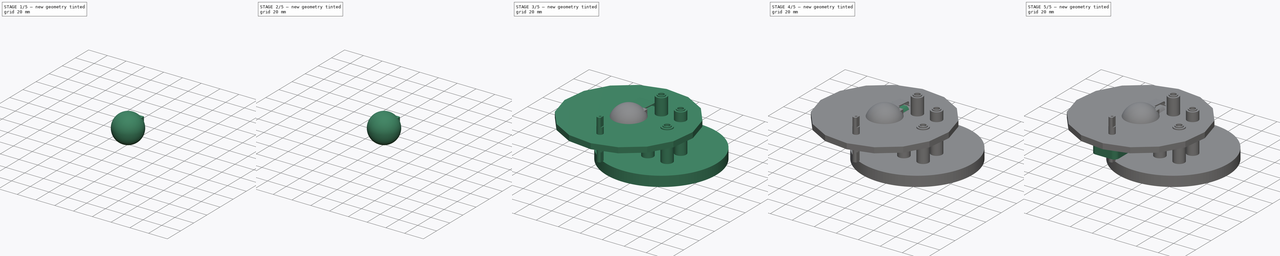
[diagram: build sequence overview — one tinted view per stage of 5, left to right]
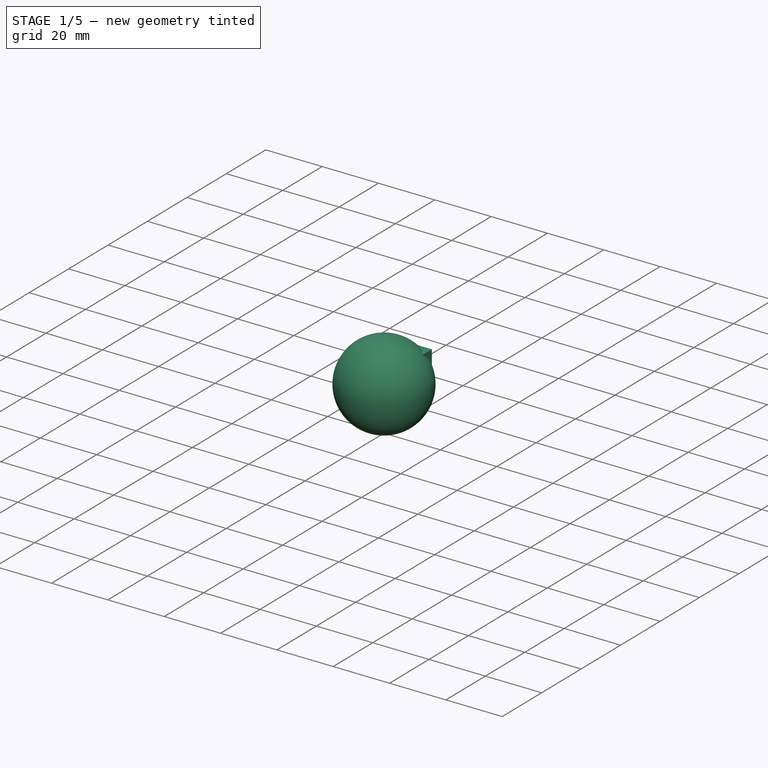
[diagram: stage 1 of 5 — iso view after this stage's code; geometry added in this stage tinted green]
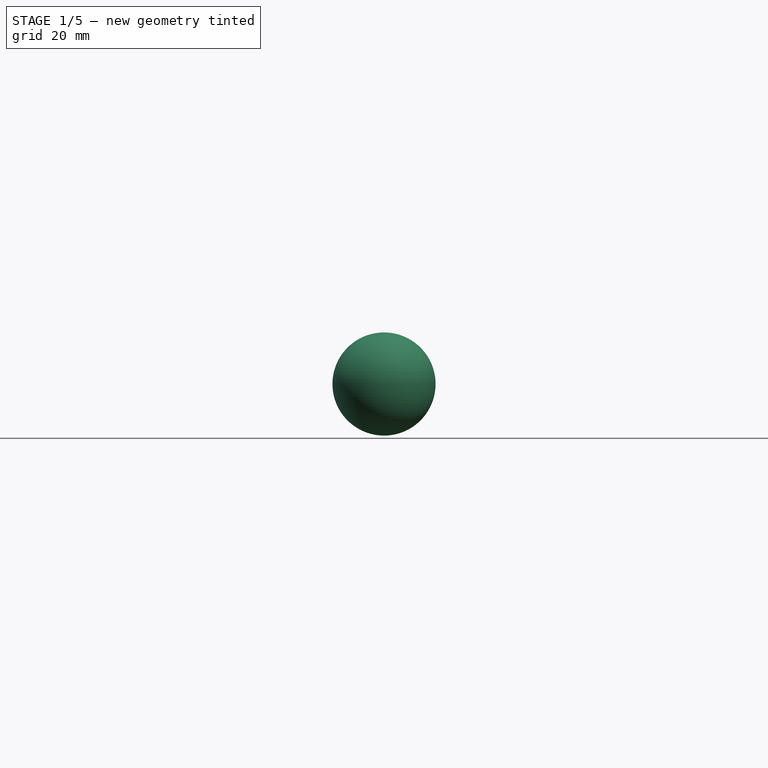
[diagram: stage 1 of 5 — front view after this stage's code; geometry added in this stage tinted green]
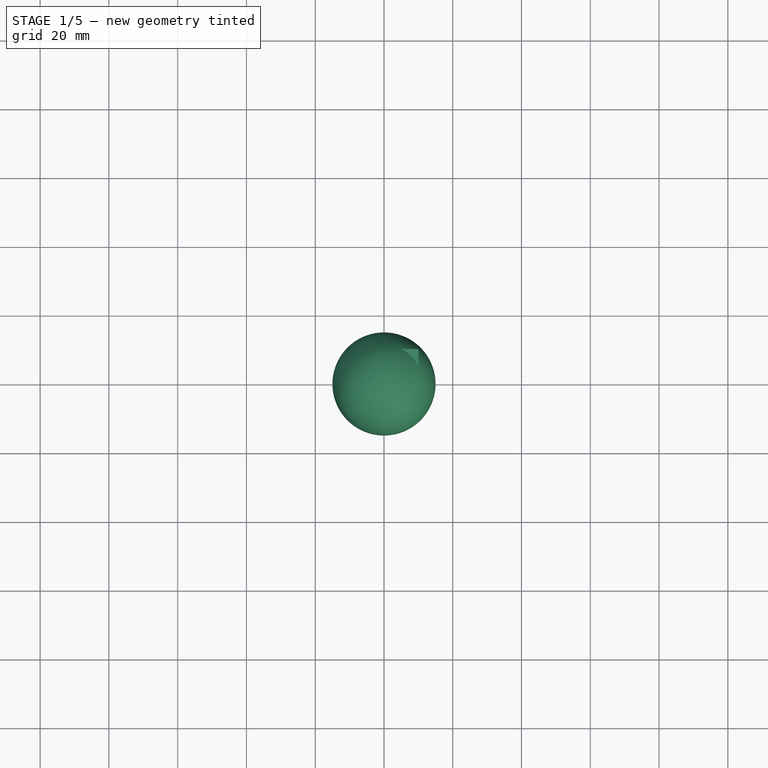
[diagram: stage 1 of 5 — top view after this stage's code; geometry added in this stage tinted green]
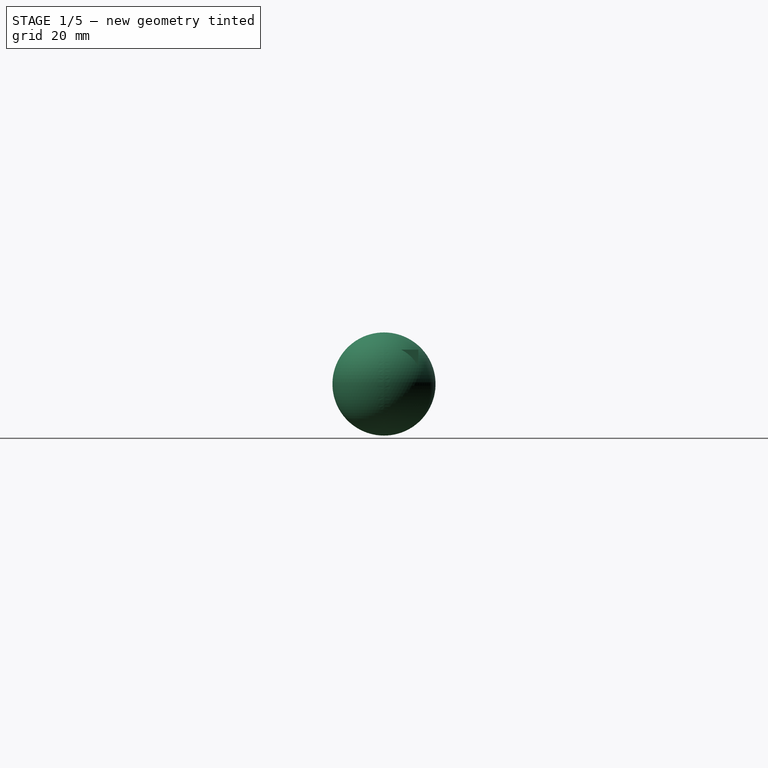
[diagram: stage 1 of 5 — right view after this stage's code; geometry added in this stage tinted green]
FCSTD DOCUMENT  (FreeCAD 0.19R24276 (Git))
Label: turntable
License: All rights reserved
LicenseURL: http://en.wikipedia.org/wiki/All_rights_reserved
objects: Sketcher::SketchObject×55, PartDesign::Pad×38, PartDesign::Body×37, PartDesign::Chamfer×24, PartDesign::Pocket×23, PartDesign::AdditiveBox×18, App::Part×14, PartDesign::ShapeBinder×10, PartDesign::Fillet×9, PartDesign::Revolution×1, PartDesign::Groove×1, PartDesign::Plane×1, PartDesign::AdditiveCylinder×1, PartDesign::AdditiveSphere×1
note: 335 computed .brp shape members not serialized (recipe doc carries the construction recipe); baked Part::Feature solids carry a one-line shape summary decoded from their .brp

FEATURE [PartDesign::Body] Body011
  Group = -> [Box008,Chamfer012]
  Origin = -> Origin015
  Placement = pos=(-5,-5,5) rot=(0,0,1;0rad)
  Tip = -> Chamfer012
FEATURE [PartDesign::Body] Body012
  Group = -> [Box007,Chamfer010]
  Origin = -> Origin017
  Placement = pos=(-5,-5,15) rot=(0,0,1;0rad)
  Tip = -> Chamfer010
FEATURE [App::Part] Part007  label="Part004"
  Group = -> [Body010,Body011,Body012]
  Origin = -> Origin016
  Placement = pos=(-13,-10,56.5) rot=(0,1,0;-3.14159rad)
FEATURE [PartDesign::AdditiveBox] Box010
  AttacherType = Attacher::AttachEngine3D
  Height = 10
  Length = 10
  Refine = true
  Width = 10
FEATURE [PartDesign::Body] Body014
  Group = -> [Box010,Chamfer014]
  Origin = -> Origin019
  Placement = pos=(-5,-5,5) rot=(0,0,1;0rad)
  Tip = -> Chamfer014
FEATURE [PartDesign::AdditiveBox] Box011
  AttacherType = Attacher::AttachEngine3D
  Height = 10
  Length = 10
  Refine = true
  Width = 10
FEATURE [PartDesign::Chamfer] Chamfer013
  Angle = 45
  Base = -> Box011 [Edge2,Edge10,Edge6,Edge12,Edge4,Edge9,Edge11,Edge8]
  BaseFeature = -> Box011
  ChamferType = 0
  FlipDirection = false
  Refine = true
  Size = 0.5
  Size2 = 1
  SupportTransform = false
FEATURE [PartDesign::Body] Body015
  Group = -> [Box011,Chamfer013]
  Origin = -> Origin020
  Placement = pos=(-5,-5,15) rot=(0,0,1;0rad)
  Tip = -> Chamfer013
FEATURE [PartDesign::AdditiveBox] Box012
  AttacherType = Attacher::AttachEngine3D
  Height = 10
  Length = 10
  Refine = true
  Width = 10
FEATURE [PartDesign::Chamfer] Chamfer015
  Angle = 45
  Base = -> Box012 [Edge2,Edge10,Edge6,Edge12,Edge4,Edge9,Edge11,Edge8]
  BaseFeature = -> Box012
  ChamferType = 0
  FlipDirection = false
  Refine = true
  Size = 0.5
  Size2 = 1
  SupportTransform = false
FEATURE [PartDesign::Body] Body013
  Group = -> [Box012,Chamfer015]
  Origin = -> Origin018
  Placement = pos=(-5,-5,-5) rot=(0,0,1;0rad)
  Tip = -> Chamfer015
FEATURE [App::Part] Part008
  Group = -> [Body013,Body014,Body015]
  Origin = -> Origin021
  Placement = pos=(24.566,8.8947,68) rot=(0.129984,0.98733,-0.091016;1.93182rad)
FEATURE [PartDesign::AdditiveBox] Box013
  AttacherType = Attacher::AttachEngine3D
  Height = 10
  Length = 10
  Refine = true
  Width = 10
FEATURE [PartDesign::AdditiveBox] Box014
  AttacherType = Attacher::AttachEngine3D
  Height = 10
  Length = 10
  Refine = true
  Width = 10
FEATURE [PartDesign::Chamfer] Chamfer017
  Angle = 45
  Base = -> Box013 [Edge2,Edge10,Edge6,Edge12,Edge4,Edge9,Edge11,Edge8]
  BaseFeature = -> Box013
  ChamferType = 0
  FlipDirection = false
  Refine = true
  Size = 0.5
  Size2 = 1
  SupportTransform = false
FEATURE [PartDesign::Body] Body016
  Group = -> [Box013,Chamfer017]
  Origin = -> Origin023
  Placement = pos=(-5,-5,-5) rot=(0,0,1;0rad)
  Tip = -> Chamfer017
FEATURE [PartDesign::Chamfer] Chamfer018
  Angle = 45
  Base = -> Box014 [Edge2,Edge10,Edge6,Edge12,Edge4,Edge9,Edge11,Edge8]
  BaseFeature = -> Box014
  ChamferType = 0
  FlipDirection = false
  Refine = true
  Size = 0.5
  Size2 = 1
  SupportTransform = false
FEATURE [PartDesign::Body] Body018
  Group = -> [Box014,Chamfer018]
  Origin = -> Origin024
  Placement = pos=(-5,-5,15) rot=(0,0,1;0rad)
  Tip = -> Chamfer018
FEATURE [PartDesign::AdditiveBox] Box015
  AttacherType = Attacher::AttachEngine3D
  Height = 10
  Length = 10
  Refine = true
  Width = 10
FEATURE [PartDesign::Chamfer] Chamfer016
  Angle = 45
  Base = -> Box015 [Edge2,Edge10,Edge6,Edge12,Edge4,Edge9,Edge11,Edge8]
  BaseFeature = -> Box015
  ChamferType = 0
  FlipDirection = false
  Refine = true
  Size = 0.5
  Size2 = 1
  SupportTransform = false
FEATURE [PartDesign::Body] Body017
  Group = -> [Box015,Chamfer016]
  Origin = -> Origin025
  Placement = pos=(-5,-5,5) rot=(0,0,1;0rad)
  Tip = -> Chamfer016
FEATURE [App::Part] Part009
  Group = -> [Body016,Body017,Body018]
  Origin = -> Origin022
  Placement = pos=(13,10,72) rot=(0,1,0;-1.39626rad)
FEATURE [PartDesign::AdditiveBox] Box016
  AttacherType = Attacher::AttachEngine3D
  Height = 10
  Length = 10
  Refine = true
  Width = 10
FEATURE [PartDesign::Chamfer] Chamfer019
  Angle = 45
  Base = -> Box016 [Edge2,Edge10,Edge6,Edge12,Edge4,Edge9,Edge11,Edge8]
  BaseFeature = -> Box016
  ChamferType = 0
  FlipDirection = false
  Refine = true
  Size = 0.5
  Size2 = 1
  SupportTransform = false
FEATURE [PartDesign::Body] Body031  label="Body020"
  Group = -> [Box016,Chamfer019]
  Origin = -> Origin066
  Placement = pos=(0,-5,10) rot=(0,0,1;0rad)
  Tip = -> Chamfer019
FEATURE [PartDesign::AdditiveBox] Box017
  AttacherType = Attacher::AttachEngine3D
  Height = 10
  Length = 10
  Refine = true
  Width = 10
FEATURE [PartDesign::Chamfer] Chamfer020
  Angle = 45
  Base = -> Box017 [Edge2,Edge10,Edge6,Edge12,Edge4,Edge9,Edge11,Edge8]
  BaseFeature = -> Box017
  ChamferType = 0
  FlipDirection = false
  Refine = true
  Size = 0.5
  Size2 = 1
  SupportTransform = false
FEATURE [PartDesign::Body] Body019
  Group = -> [Box017,Chamfer020]
  Origin = -> Origin065
  Placement = pos=(0,-5,0) rot=(0,0,1;0rad)
  Tip = -> Chamfer020
FEATURE [App::Part] Part010  label="Part007"
  Group = -> [Body019,Body031]
  Origin = -> Origin064
  Placement = pos=(4.5,10,49.5) rot=(0,1,0;-0.855211rad)
FEATURE [Sketcher::SketchObject] Sketch003
  FullyConstrained = true
  MapMode = 5
  Support = -> [XY_Plane069]
  sketch-geometry (4):
    g0: LineSegment StartX=-5 StartY=5 StartZ=0 EndX=5 EndY=5 EndZ=0
    g1: LineSegment StartX=5 StartY=5 StartZ=0 EndX=5 EndY=-5 EndZ=0
    g2: LineSegment StartX=5 StartY=-5 StartZ=0 EndX=-5 EndY=-5 EndZ=0
    g3: LineSegment StartX=-5 StartY=-5 StartZ=0 EndX=-5 EndY=5 EndZ=0
  constraints (10):
    c: Coincident(g0,g1)
    c: Coincident(g1,g2)
    c: Coincident(g2,g3)
    c: Coincident(g3,g0)
    c: Horizontal(g2)
    c: Vertical(g1)
    c: Symmetric(g0,g0,g-2)
    c: Symmetric(g2,g0,g-1)
    c: Equal(g2,g1)
    c: Distance(g1) = 10
FEATURE [PartDesign::Pad] Pad005
  Direction = (0.5,0,1)
  Length = 10
  Length2 = 100
  Profile = -> Sketch003
  Refine = true
  Type = 0
  UseCustomVector = true
FEATURE [PartDesign::Chamfer] Chamfer023
  Angle = 45
  Base = -> Pad005 [Edge7,Edge10,Edge12,Edge4,Edge6,Edge9,Edge11,Edge3]
  BaseFeature = -> Pad005
  ChamferType = 0
  FlipDirection = false
  Refine = true
  Size = 0.5
  Size2 = 1
  SupportTransform = false
FEATURE [PartDesign::Body] Body034  label="Body023"
  Group = -> [Sketch003,Pad005,Chamfer023]
  Origin = -> Origin069
  Placement = pos=(5,0,10) rot=(0,0,1;0rad)
  Tip = -> Chamfer023
FEATURE [Sketcher::SketchObject] Sketch004
  FullyConstrained = true
  MapMode = 5
  Support = -> [XY_Plane031]
  sketch-geometry (4):
    g0: LineSegment StartX=-5 StartY=5 StartZ=0 EndX=5 EndY=5 EndZ=0
    g1: LineSegment StartX=5 StartY=5 StartZ=0 EndX=5 EndY=-5 EndZ=0
    g2: LineSegment StartX=5 StartY=-5 StartZ=0 EndX=-5 EndY=-5 EndZ=0
    g3: LineSegment StartX=-5 StartY=-5 StartZ=0 EndX=-5 EndY=5 EndZ=0
  constraints (10):
    c: Coincident(g0,g1)
    c: Coincident(g1,g2)
    c: Coincident(g2,g3)
    c: Coincident(g3,g0)
    c: Horizontal(g2)
    c: Vertical(g1)
    c: Symmetric(g0,g0,g-2)
    c: Symmetric(g2,g0,g-1)
    c: Equal(g2,g1)
    c: Distance(g1) = 10
FEATURE [PartDesign::Pad] Pad004
  Direction = (0.5,0,1)
  Length = 10
  Length2 = 100
  Profile = -> Sketch004
  Refine = true
  Type = 0
  UseCustomVector = true
FEATURE [PartDesign::Chamfer] Chamfer021
  Angle = 45
  Base = -> Pad004 [Edge7,Edge10,Edge12,Edge4,Edge6,Edge9,Edge11,Edge3]
  BaseFeature = -> Pad004
  ChamferType = 0
  FlipDirection = false
  Refine = true
  Size = 0.5
  Size2 = 1
  SupportTransform = false
FEATURE [PartDesign::Body] Body032  label="Body021"
  Group = -> [Sketch004,Pad004,Chamfer021]
  Origin = -> Origin031
  Tip = -> Chamfer021
FEATURE [Sketcher::SketchObject] Sketch005
  FullyConstrained = true
  MapMode = 5
  Support = -> [XY_Plane068]
  sketch-geometry (4):
    g0: LineSegment StartX=-5 StartY=5 StartZ=0 EndX=5 EndY=5 EndZ=0
    g1: LineSegment StartX=5 StartY=5 StartZ=0 EndX=5 EndY=-5 EndZ=0
    g2: LineSegment StartX=5 StartY=-5 StartZ=0 EndX=-5 EndY=-5 EndZ=0
    g3: LineSegment StartX=-5 StartY=-5 StartZ=0 EndX=-5 EndY=5 EndZ=0
  constraints (10):
    c: Coincident(g0,g1)
    c: Coincident(g1,g2)
    c: Coincident(g2,g3)
    c: Coincident(g3,g0)
    c: Horizontal(g2)
    c: Vertical(g1)
    c: Symmetric(g0,g0,g-2)
    c: Symmetric(g2,g0,g-1)
    c: Equal(g2,g1)
    c: Distance(g1) = 10
FEATURE [PartDesign::Pad] Pad003
  Direction = (0.5,0,1)
  Length = 10
  Length2 = 100
  Profile = -> Sketch005
  Refine = true
  Type = 0
  UseCustomVector = true
FEATURE [PartDesign::Chamfer] Chamfer022
  Angle = 45
  Base = -> Pad003 [Edge7,Edge10,Edge12,Edge4,Edge6,Edge9,Edge11,Edge3]
  BaseFeature = -> Pad003
  ChamferType = 0
  FlipDirection = false
  Refine = true
  Size = 0.5
  Size2 = 1
  SupportTransform = false
FEATURE [PartDesign::Body] Body033  label="Body022"
  Group = -> [Sketch005,Pad003,Chamfer022]
  Origin = -> Origin067
  Placement = pos=(10,0,20) rot=(0,0,1;0rad)
  Tip = -> Chamfer022
FEATURE [App::Part] Part011
  Group = -> [Body032,Body034,Body033]
  Origin = -> Origin068
  Placement = pos=(-33,7,71) rot=(0.783155,0.225485,0.579504;3.3655rad)
FEATURE [PartDesign::AdditiveCylinder] Cylinder
  Angle = 360
  AttacherType = Attacher::AttachEngine3D
  Height = 6
  Radius = 2
  Refine = true
FEATURE [PartDesign::Body] Body035  label="Body024"
  Group = -> [Cylinder]
  Origin = -> Origin034
  Tip = -> Cylinder
FEATURE [PartDesign::AdditiveSphere] Sphere
  Angle1 = -90
  Angle2 = 90
  Angle3 = 360
  AttacherType = Attacher::AttachEngine3D
  Radius = 15
  Refine = true
FEATURE [PartDesign::Body] Body036  label="Body025"
  Group = -> [Sphere]
  Origin = -> Origin035
  Placement = pos=(0,0,20) rot=(0,0,1;0rad)
  Tip = -> Sphere
FEATURE [App::Part] Part012
  Group = -> [Body035,Body036]
  Origin = -> Origin070
  Placement = pos=(14,10,74) rot=(0,0,1;0rad)
FEATURE [App::Part] Part013  label="italyMascot"
  Group = -> [Part003,Part004,Part005,Part006,Part007,Part008,Part009,Part010,Part011,Part012]
  Origin = -> Origin071
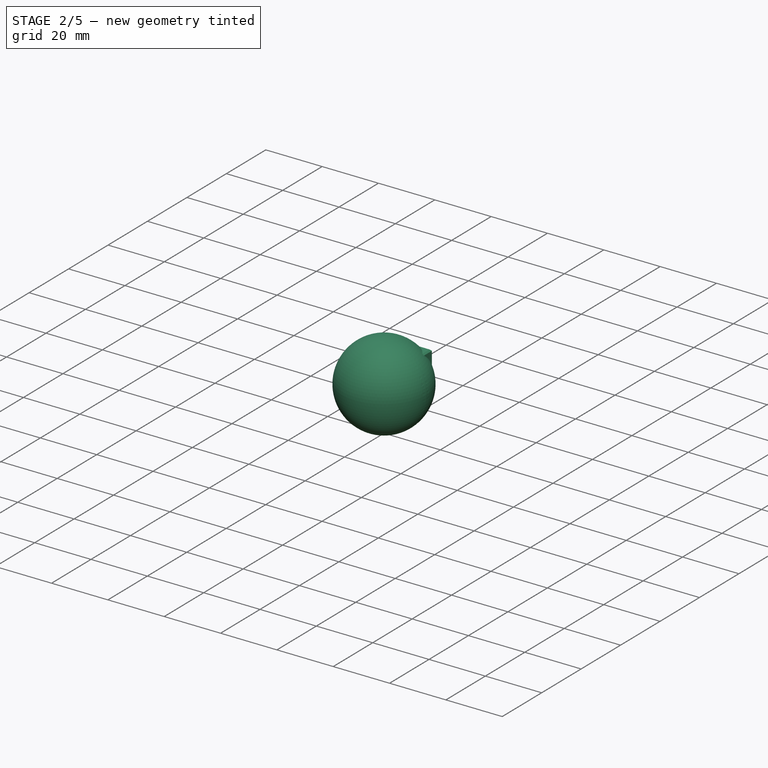
[diagram: stage 2 of 5 — iso view after this stage's code; geometry added in this stage tinted green]
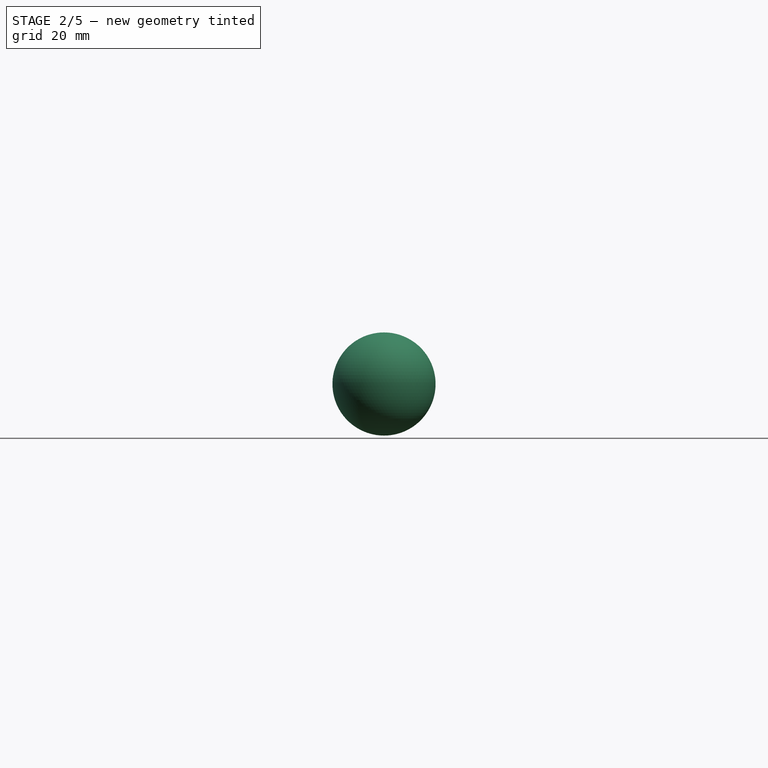
[diagram: stage 2 of 5 — front view after this stage's code; geometry added in this stage tinted green]
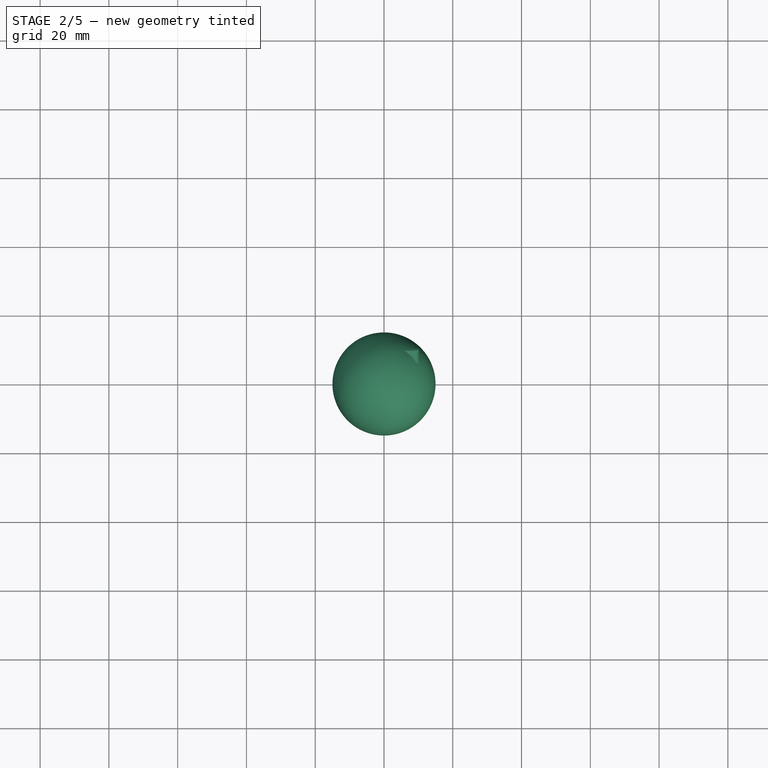
[diagram: stage 2 of 5 — top view after this stage's code; geometry added in this stage tinted green]
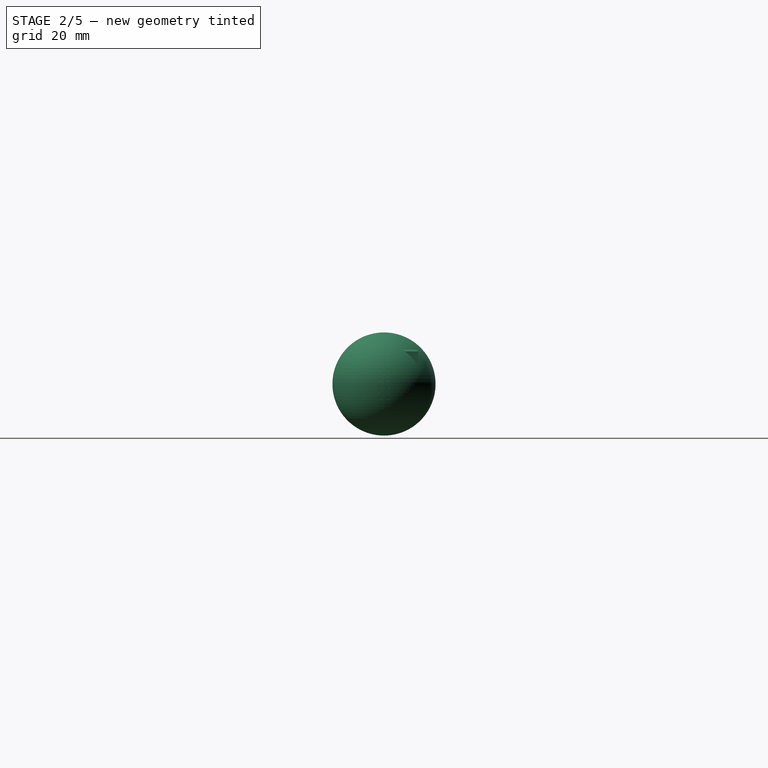
[diagram: stage 2 of 5 — right view after this stage's code; geometry added in this stage tinted green]
FEATURE [PartDesign::Body] Body001
  Group = -> [Sketch001,Pad001,Chamfer001]
  Origin = -> Origin054
  Placement = pos=(5,0,10) rot=(0,0,1;0rad)
  Tip = -> Chamfer001
FEATURE [Sketcher::SketchObject] Sketch002
  FullyConstrained = true
  MapMode = 5
  Support = -> [XY_Plane055]
  sketch-geometry (4):
    g0: LineSegment StartX=-5 StartY=5 StartZ=0 EndX=5 EndY=5 EndZ=0
    g1: LineSegment StartX=5 StartY=5 StartZ=0 EndX=5 EndY=-5 EndZ=0
    g2: LineSegment StartX=5 StartY=-5 StartZ=0 EndX=-5 EndY=-5 EndZ=0
    g3: LineSegment StartX=-5 StartY=-5 StartZ=0 EndX=-5 EndY=5 EndZ=0
  constraints (10):
    c: Coincident(g0,g1)
    c: Coincident(g1,g2)
    c: Coincident(g2,g3)
    c: Coincident(g3,g0)
    c: Horizontal(g2)
    c: Vertical(g1)
    c: Symmetric(g0,g0,g-2)
    c: Symmetric(g2,g0,g-1)
    c: Equal(g2,g1)
    c: Distance(g1) = 10
FEATURE [PartDesign::Pad] Pad002
  Direction = (0.5,0,1)
  Length = 10
  Length2 = 100
  Profile = -> Sketch002
  Refine = true
  Type = 0
  UseCustomVector = true
FEATURE [PartDesign::Chamfer] Chamfer002
  Angle = 45
  Base = -> Pad002 [Edge7,Edge10,Edge12,Edge4,Edge6,Edge9,Edge11,Edge3]
  BaseFeature = -> Pad002
  ChamferType = 0
  FlipDirection = false
  Refine = true
  Size = 0.5
  Size2 = 1
  SupportTransform = false
FEATURE [PartDesign::Body] Body002
  Group = -> [Sketch002,Pad002,Chamfer002]
  Origin = -> Origin055
  Placement = pos=(10,0,20) rot=(0,0,1;0rad)
  Tip = -> Chamfer002
FEATURE [PartDesign::AdditiveBox] Box
  AttacherType = Attacher::AttachEngine3D
  Height = 10
  Length = 10
  Refine = true
  Width = 10
FEATURE [App::Part] Part003
  Group = -> [Body030,Body001,Body002]
  Origin = -> Origin057
  Placement = pos=(-5,-4.9886,0.261467) rot=(-0.446191,0.039037,0.894086;0.195084rad)
FEATURE [PartDesign::Chamfer] Chamfer003
  Angle = 45
  Base = -> Box [Edge2,Edge10,Edge6,Edge12,Edge4,Edge9,Edge11,Edge8]
  BaseFeature = -> Box
  ChamferType = 0
  FlipDirection = false
  Refine = true
  Size = 0.5
  Size2 = 1
  SupportTransform = false
FEATURE [PartDesign::Body] Body003
  Group = -> [Box,Chamfer003]
  Origin = -> Origin056
  Placement = pos=(0,-5,0) rot=(0,0,1;0rad)
  Tip = -> Chamfer003
FEATURE [PartDesign::AdditiveBox] Box001
  AttacherType = Attacher::AttachEngine3D
  Height = 10
  Length = 10
  Refine = true
  Width = 10
FEATURE [PartDesign::Chamfer] Chamfer004
  Angle = 45
  Base = -> Box001 [Edge2,Edge10,Edge6,Edge12,Edge4,Edge9,Edge11,Edge8]
  BaseFeature = -> Box001
  ChamferType = 0
  FlipDirection = false
  Refine = true
  Size = 0.5
  Size2 = 1
  SupportTransform = false
FEATURE [PartDesign::Body] Body004
  Group = -> [Box001,Chamfer004]
  Origin = -> Origin058
  Placement = pos=(0,-5,10) rot=(0,0,1;0rad)
  Tip = -> Chamfer004
FEATURE [App::Part] Part004  label="Part001"
  Group = -> [Body003,Body004]
  Origin = -> Origin059
  Placement = pos=(5.5,0,33.5) rot=(0,1,0;0.349066rad)
FEATURE [PartDesign::AdditiveBox] Box002
  AttacherType = Attacher::AttachEngine3D
  Height = 10
  Length = 10
  Refine = true
  Width = 10
FEATURE [PartDesign::Chamfer] Chamfer006
  Angle = 45
  Base = -> Box002 [Edge2,Edge10,Edge6,Edge12,Edge4,Edge9,Edge11,Edge8]
  BaseFeature = -> Box002
  ChamferType = 0
  FlipDirection = false
  Refine = true
  Size = 0.5
  Size2 = 1
  SupportTransform = false
FEATURE [PartDesign::Body] Body006
  Group = -> [Box002,Chamfer006]
  Origin = -> Origin060
  Placement = pos=(0,-5,10) rot=(0,0,1;0rad)
  Tip = -> Chamfer006
FEATURE [PartDesign::AdditiveBox] Box003
  AttacherType = Attacher::AttachEngine3D
  Height = 10
  Length = 10
  Refine = true
  Width = 10
FEATURE [PartDesign::Chamfer] Chamfer005
  Angle = 45
  Base = -> Box003 [Edge2,Edge10,Edge6,Edge12,Edge4,Edge9,Edge11,Edge8]
  BaseFeature = -> Box003
  ChamferType = 0
  FlipDirection = false
  Refine = true
  Size = 0.5
  Size2 = 1
  SupportTransform = false
FEATURE [PartDesign::Body] Body005
  Group = -> [Box003,Chamfer005]
  Origin = -> Origin062
  Placement = pos=(0,-5,0) rot=(0,0,1;0rad)
  Tip = -> Chamfer005
FEATURE [PartDesign::AdditiveBox] Box004
  AttacherType = Attacher::AttachEngine3D
  Height = 10
  Length = 10
  Refine = true
  Width = 10
FEATURE [PartDesign::Chamfer] Chamfer007
  Angle = 45
  Base = -> Box004 [Edge2,Edge10,Edge6,Edge12,Edge4,Edge9,Edge11,Edge8]
  BaseFeature = -> Box004
  ChamferType = 0
  FlipDirection = false
  Refine = true
  Size = 0.5
  Size2 = 1
  SupportTransform = false
FEATURE [PartDesign::Body] Body007
  Group = -> [Box004,Chamfer007]
  Origin = -> Origin063
  Placement = pos=(0,-5,20) rot=(0,0,1;0rad)
  Tip = -> Chamfer007
FEATURE [App::Part] Part005
  Group = -> [Body005,Body006,Body007]
  Origin = -> Origin061
  Placement = pos=(-0.5,0,46.5) rot=(0,1,0;0.349066rad)
FEATURE [PartDesign::AdditiveBox] Box005
  AttacherType = Attacher::AttachEngine3D
  Height = 10
  Length = 10
  Refine = true
  Width = 10
FEATURE [PartDesign::Chamfer] Chamfer009
  Angle = 45
  Base = -> Box005 [Edge2,Edge10,Edge6,Edge12,Edge4,Edge9,Edge11,Edge8]
  BaseFeature = -> Box005
  ChamferType = 0
  FlipDirection = false
  Refine = true
  Size = 0.5
  Size2 = 1
  SupportTransform = false
FEATURE [PartDesign::Body] Body009
  Group = -> [Box005,Chamfer009]
  Origin = -> Origin011
  Placement = pos=(0,-5,10) rot=(0,0,1;0rad)
  Tip = -> Chamfer009
FEATURE [PartDesign::AdditiveBox] Box006
  AttacherType = Attacher::AttachEngine3D
  Height = 10
  Length = 10
  Refine = true
  Width = 10
FEATURE [PartDesign::Chamfer] Chamfer008
  Angle = 45
  Base = -> Box006 [Edge2,Edge10,Edge6,Edge12,Edge4,Edge9,Edge11,Edge8]
  BaseFeature = -> Box006
  ChamferType = 0
  FlipDirection = false
  Refine = true
  Size = 0.5
  Size2 = 1
  SupportTransform = false
FEATURE [PartDesign::Body] Body008
  Group = -> [Box006,Chamfer008]
  Origin = -> Origin013
  Placement = pos=(0,-5,0) rot=(0,0,1;0rad)
  Tip = -> Chamfer008
FEATURE [App::Part] Part006
  Group = -> [Body008,Body009]
  Origin = -> Origin012
  Placement = pos=(-0.5,0,46.5) rot=(0,1,0;-1.22173rad)
FEATURE [PartDesign::AdditiveBox] Box007
  AttacherType = Attacher::AttachEngine3D
  Height = 10
  Length = 10
  Refine = true
  Width = 10
FEATURE [PartDesign::Chamfer] Chamfer010
  Angle = 45
  Base = -> Box007 [Edge2,Edge10,Edge6,Edge12,Edge4,Edge9,Edge11,Edge8]
  BaseFeature = -> Box007
  ChamferType = 0
  FlipDirection = false
  Refine = true
  Size = 0.5
  Size2 = 1
  SupportTransform = false
FEATURE [PartDesign::AdditiveBox] Box008
  AttacherType = Attacher::AttachEngine3D
  Height = 10
  Length = 10
  Refine = true
  Width = 10
FEATURE [PartDesign::AdditiveBox] Box009
  AttacherType = Attacher::AttachEngine3D
  Height = 10
  Length = 10
  Refine = true
  Width = 10
FEATURE [PartDesign::Chamfer] Chamfer011
  Angle = 45
  Base = -> Box009 [Edge2,Edge10,Edge6,Edge12,Edge4,Edge9,Edge11,Edge8]
  BaseFeature = -> Box009
  ChamferType = 0
  FlipDirection = false
  Refine = true
  Size = 0.5
  Size2 = 1
  SupportTransform = false
FEATURE [PartDesign::Body] Body010
  Group = -> [Box009,Chamfer011]
  Origin = -> Origin014
  Placement = pos=(-5,-5,-5) rot=(0,0,1;0rad)
  Tip = -> Chamfer011
FEATURE [PartDesign::Chamfer] Chamfer012
  Angle = 45
  Base = -> Box008 [Edge2,Edge10,Edge6,Edge12,Edge4,Edge9,Edge11,Edge8]
  BaseFeature = -> Box008
  ChamferType = 0
  FlipDirection = false
  Refine = true
  Size = 0.5
  Size2 = 1
  SupportTransform = false
FEATURE [PartDesign::Chamfer] Chamfer014
  Angle = 45
  Base = -> Box010 [Edge2,Edge10,Edge6,Edge12,Edge4,Edge9,Edge11,Edge8]
  BaseFeature = -> Box010
  ChamferType = 0
  FlipDirection = false
  Refine = true
  Size = 0.5
  Size2 = 1
  SupportTransform = false
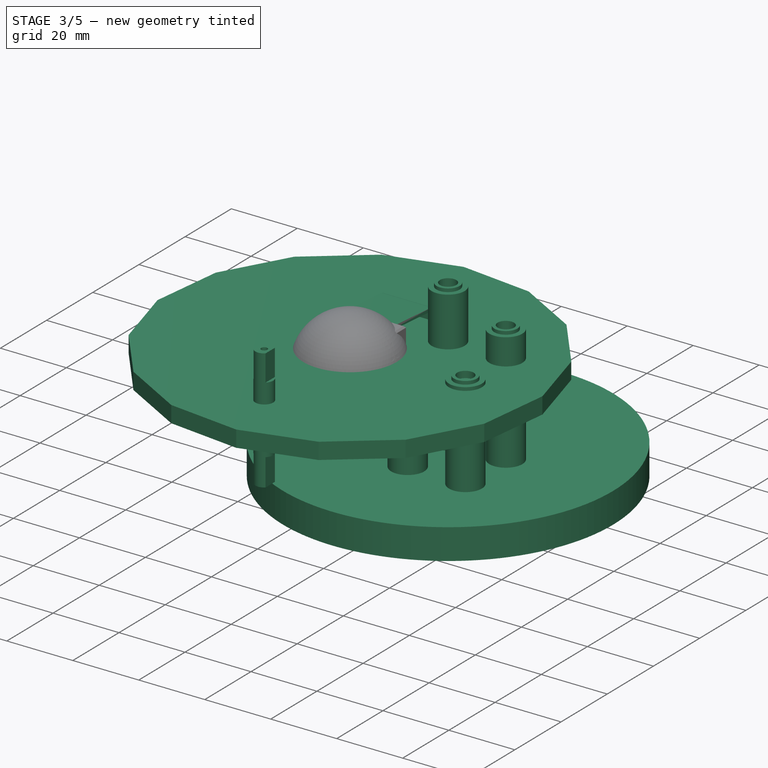
[diagram: stage 3 of 5 — iso view after this stage's code; geometry added in this stage tinted green]
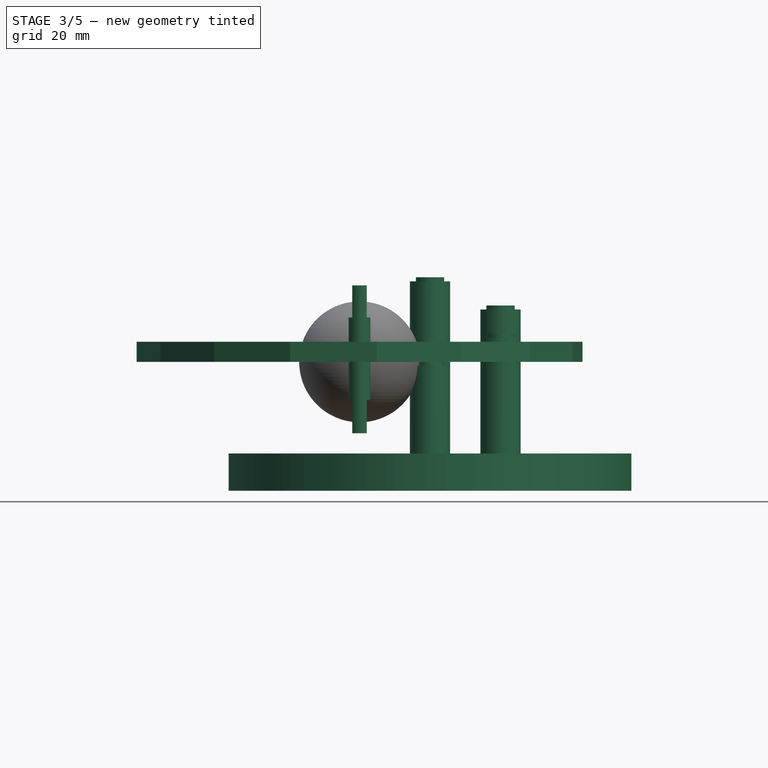
[diagram: stage 3 of 5 — front view after this stage's code; geometry added in this stage tinted green]
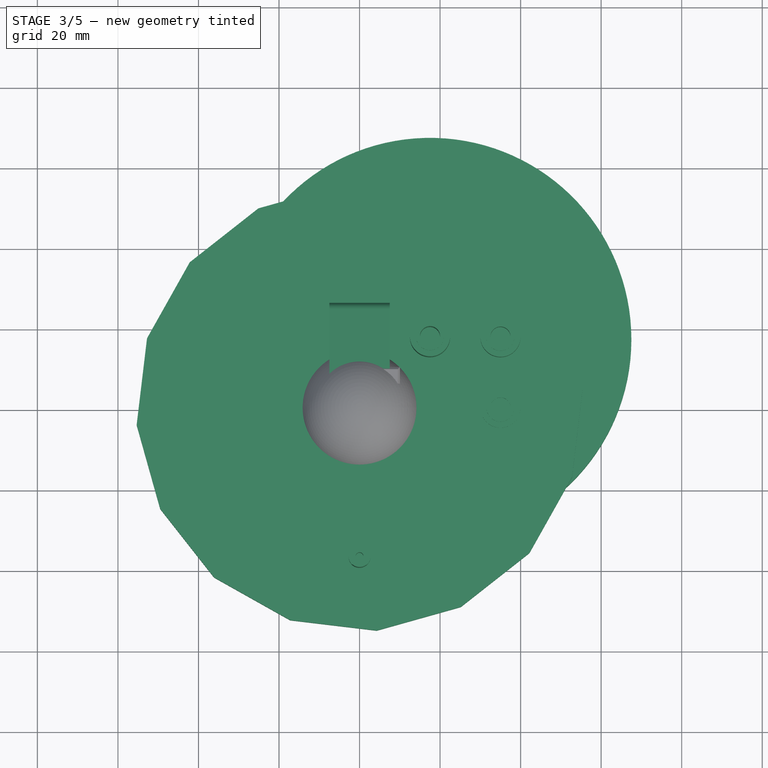
[diagram: stage 3 of 5 — top view after this stage's code; geometry added in this stage tinted green]
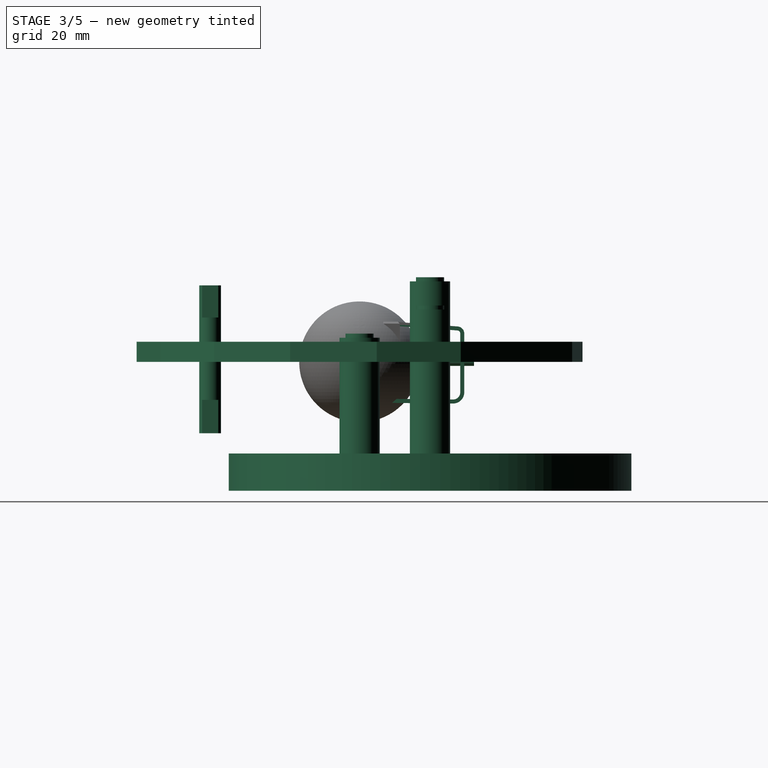
[diagram: stage 3 of 5 — right view after this stage's code; geometry added in this stage tinted green]
FEATURE [PartDesign::ShapeBinder] ShapeBinder
  Placement = pos=(0,0,0) rot=(1,0,0;1.5708rad)
  TraceSupport = false
FEATURE [Sketcher::SketchObject] Sketch052
  ExternalGeometry = -> [ShapeBinder]
  FullyConstrained = true
  MapMode = 5
  Placement = pos=(0,0,-2e-15) rot=(0,0,1;3.14159rad)
  Support = -> [ShapeBinder]
  sketch-geometry (1):
    g0: Circle CenterX=0 CenterY=37.1 CenterZ=0 NormalX=0 NormalY=0 NormalZ=1 AngleXU=0 Radius=2.7
  constraints (2):
    c: Coincident(g0,g-3)
    c: Equal(g0,g-3)
FEATURE [PartDesign::Pad] Pad038
  Direction = (1,1,1)
  Length = 19
  Length2 = 100
  Placement = pos=(0,0,0) rot=(1,0,0;1.5708rad)
  Profile = -> Sketch052
  Refine = true
  Type = 0
FEATURE [PartDesign::Pad] Pad039
  BaseFeature = -> Pad038
  Direction = (1,1,1)
  Length = 17.74
  Length2 = 100
  Placement = pos=(0,0,0) rot=(1,0,0;1.5708rad)
  Profile = -> Sketch052
  Refine = true
  Reversed = true
  Type = 0
FEATURE [Sketcher::SketchObject] Sketch053
  ExternalGeometry = -> [Pad039]
  FullyConstrained = true
  MapMode = 5
  Placement = pos=(-4e-16,-2.52e-14,-17.74) rot=(1,0,0;3.14159rad)
  Support = -> [Pad039]
  sketch-geometry (5):
    g0: LineSegment StartX=-1.8 StartY=35.0875 StartZ=0 EndX=-1.8 EndY=39.1125 EndZ=0
    g1: LineSegment StartX=1.8 StartY=39.1125 StartZ=0 EndX=1.8 EndY=35.0875 EndZ=0
    g2: ArcOfCircle CenterX=0 CenterY=37.1 CenterZ=0 NormalX=0 NormalY=0 NormalZ=1 AngleXU=0 Radius=2.7 StartAngle=2.30052 EndAngle=3.98266
    g3: ArcOfCircle CenterX=0 CenterY=37.1 CenterZ=0 NormalX=0 NormalY=0 NormalZ=1 AngleXU=0 Radius=2.7 StartAngle=5.44212 EndAngle=7.12425
    g4: Circle CenterX=0 CenterY=37.1 CenterZ=0 NormalX=0 NormalY=0 NormalZ=1 AngleXU=0 Radius=0.95
  constraints (16):
    c: PointOnObject(g0,g-3)
    c: PointOnObject(g0,g-3)
    c: PointOnObject(g1,g-3)
    c: PointOnObject(g1,g-3)
    c: Vertical(g1)
    c: Vertical(g0)
    c: Horizontal(g0,g1)
    c: DistanceX(g0,g1) = 3.6
    c: Coincident(g2,g-3)
    c: Coincident(g2,g0)
    c: Coincident(g3,g1)
    c: PointOnObject(g2,g0)
    c: PointOnObject(g3,g1)
    c: Coincident(g2,g3)
    c: Coincident(g4,g2)
    c: Diameter(g4) = 1.9
FEATURE [PartDesign::Pocket] Pocket009
  BaseFeature = -> Pad039
  Length = 8.3
  Length2 = 100
  Placement = pos=(0,0,0) rot=(1,0,0;1.5708rad)
  Profile = -> Sketch053
  Refine = true
  Type = 0
FEATURE [PartDesign::Body] Body026  label="motor_4"
  Group = -> [ShapeBinder001,Sketch074,Pad047,Sketch075,Pocket021,Fillet019]
  Origin = -> Origin033
  Placement = pos=(0,25.7,0) rot=(0,0,1;0rad)
  Tip = -> Fillet019
FEATURE [Sketcher::SketchObject] Sketch076
  FullyConstrained = true
  MapMode = 5
  Placement = pos=(0,0,0) rot=(0.57735,0.57735,0.57735;2.0944rad)
  Support = -> [YZ_Plane036]
  sketch-geometry (12):
    g0: LineSegment StartX=25 StartY=-7.5501 StartZ=0 EndX=25 EndY=7 EndZ=0
    g1: LineSegment StartX=24.2586 StartY=7.79785 StartZ=0 EndX=3.11552 EndY=9.3505 EndZ=0
    g2: LineSegment StartX=3.11552 StartY=9.3505 StartZ=0 EndX=3.18876 EndY=10.3478 EndZ=0
    g3: LineSegment StartX=3.18876 StartY=10.3478 StartZ=0 EndX=24.3318 EndY=8.79517 EndZ=0
    g4: LineSegment StartX=26 StartY=7 StartZ=0 EndX=26 EndY=-7.5501 EndZ=0
    g5: LineSegment StartX=23.1812 StartY=-9.35 StartZ=0 EndX=2.98226 EndY=-9.13847 EndZ=0
    g6: LineSegment StartX=2.98226 StartY=-9.13847 StartZ=0 EndX=2.97179 EndY=-10.1384 EndZ=0
    g7: LineSegment StartX=2.97179 StartY=-10.1384 StartZ=0 EndX=23.1707 EndY=-10.3499 EndZ=0
    g8: ArcOfCircle CenterX=23.2 CenterY=-7.5501 CenterZ=0 NormalX=0 NormalY=0 NormalZ=1 AngleXU=0 Radius=1.8 StartAngle=4.70192 EndAngle=6.28319
    g9: ArcOfCircle CenterX=23.2 CenterY=-7.5501 CenterZ=0 NormalX=0 NormalY=0 NormalZ=1 AngleXU=0 Radius=2.8 StartAngle=4.70192 EndAngle=6.28319
    g10: ArcOfCircle CenterX=24.2 CenterY=7 CenterZ=0 NormalX=0 NormalY=0 NormalZ=1 AngleXU=0 Radius=0.8 StartAngle=0 EndAngle=1.49749
    g11: ArcOfCircle CenterX=24.2 CenterY=7 CenterZ=0 NormalX=0 NormalY=0 NormalZ=1 AngleXU=0 Radius=1.8 StartAngle=0 EndAngle=1.49749
  constraints (30):
    c: Coincident(g1,g2)
    c: Coincident(g2,g3)
    c: Vertical(g4)
    c: DistanceY(g5,g-1) = 9.35
    c: Perpendicular(g1,g2)
    c: Parallel(g1,g3)
    c: Tangent(g0,g10) = -1.5708
    c: Tangent(g1,g10) = -1.5708
    c: DistanceX(g-1,g0) = 25
    c: Tangent(g4,g11) = 1.5708
    c: Tangent(g3,g11) = 1.5708
    c: Coincident(g8,g9)
    c: Vertical(g0)
    c: Coincident(g10,g11)
    c: Tangent(g8,g0) = -1.5708
    c: Tangent(g8,g5) = 1.5708
    c: Tangent(g7,g9) = -1.5708
    c: Tangent(g9,g4) = 1.5708
    c: DistanceX(g0,g4) = 1
    c: Coincident(g5,g6)
    c: Coincident(g7,g6)
    c: Distance(g6) = 1
    c: Radius(g9) = 2.8
    c: Distance(g7) = 20.2
    c: Perpendicular(g7,g6)
    c: Angle(g0,g5) = 1.56032
    c: DistanceY(g-1,g0) = 7
    c: Radius(g11) = 1.8
    c: Distance(g3) = 21.2
    c: Angle(g1,g0) = 1.6441
FEATURE [PartDesign::Pad] Pad048
  Direction = (1,1,1)
  Length = 15
  Length2 = 100
  Midplane = true
  Placement = pos=(0,0,0) rot=(0.57735,0.57735,0.57735;2.0944rad)
  Profile = -> Sketch076
  Refine = true
  Type = 0
FEATURE [PartDesign::Body] Body027  label="soporte"
  Group = -> [Sketch076,Pad048,Sketch077,Pocket022,Sketch078,Pocket023,Sketch079,Pocket024,Fillet020]
  Origin = -> Origin036
  Placement = pos=(0,25.7,0) rot=(0,0,1;0rad)
  Tip = -> Fillet020
FEATURE [Sketcher::SketchObject] Sketch080
  AttachmentOffset = pos=(0,0,-28.4) rot=(0,0,1;0rad)
  FullyConstrained = true
  MapMode = 5
  Placement = pos=(0,28.4,6.3e-15) rot=(1,0,0;1.5708rad)
  Support = -> [XZ_Plane038]
  sketch-geometry (1):
    g0: Circle CenterX=0 CenterY=0 CenterZ=0 NormalX=0 NormalY=0 NormalZ=1 AngleXU=0 Radius=1
  constraints (2):
    c: Coincident(g0,g-1)
    c: Diameter(g0) = 2
FEATURE [PartDesign::Pad] Pad049
  Direction = (1,1,1)
  Length = 38
  Length2 = 100
  Placement = pos=(0,0,0) rot=(1,0,0;1.5708rad)
  Profile = -> Sketch080
  Refine = true
  Type = 0
FEATURE [PartDesign::Body] Body028  label="motor_5"
  Group = -> [Sketch080,Pad049]
  Origin = -> Origin038
  Placement = pos=(0,25.7,0) rot=(0,0,1;0rad)
  Tip = -> Pad049
FEATURE [Sketcher::SketchObject] Sketch081
  ExternalGeometry = -> [Pocket009]
  FullyConstrained = true
  MapMode = 5
  Placement = pos=(4e-16,2.7e-14,19) rot=(0,0,1;3.14159rad)
  Support = -> [Pocket009]
  sketch-geometry (5):
    g0: ArcOfCircle CenterX=0 CenterY=37.1 CenterZ=0 NormalX=0 NormalY=0 NormalZ=1 AngleXU=0 Radius=2.7 StartAngle=2.30052 EndAngle=3.98266
    g1: LineSegment StartX=-1.8 StartY=39.1125 StartZ=0 EndX=-1.8 EndY=35.0875 EndZ=0
    g2: LineSegment StartX=1.8 StartY=39.1125 StartZ=0 EndX=1.8 EndY=35.0875 EndZ=0
    g3: ArcOfCircle CenterX=0 CenterY=37.1 CenterZ=0 NormalX=0 NormalY=0 NormalZ=1 AngleXU=0 Radius=2.7 StartAngle=5.44212 EndAngle=7.12425
    g4: Circle CenterX=0 CenterY=37.1 CenterZ=0 NormalX=0 NormalY=0 NormalZ=1 AngleXU=0 Radius=0.95
  constraints (14):
    c: Coincident(g0,g-3)
    c: Equal(g0,g-3)
    c: Vertical(g1)
    c: Vertical(g2)
    c: Horizontal(g1,g2)
    c: DistanceX(g1,g2) = 3.6
    c: Coincident(g0,g1)
    c: Coincident(g3,g2)
    c: Equal(g0,g3)
    c: Coincident(g0,g1)
    c: Coincident(g3,g2)
    c: Coincident(g0,g3)
    c: Coincident(g4,g0)
    c: Diameter(g4) = 1.9
FEATURE [PartDesign::Pocket] Pocket025
  BaseFeature = -> Pocket009
  Length = 8
  Length2 = 100
  Placement = pos=(0,0,0) rot=(1,0,0;1.5708rad)
  Profile = -> Sketch081
  Refine = true
  Type = 0
FEATURE [PartDesign::Body] Body024  label="reductor_3"
  Group = -> [ShapeBinder,Sketch052,Pad038,Pad039,Sketch053,Pocket009,Sketch081,Pocket025]
  Origin = -> Origin030
  Placement = pos=(0,37.1,0) rot=(0,0,1;0rad)
  Tip = -> Pocket025
FEATURE [App::Part] Part001  label="Motoreductor"
  Group = -> [Body020,Body021,Body022,Body023,Body025,Body026,Body028,Body027,Body024]
  Origin = -> Origin046
FEATURE [PartDesign::Plane] DatumPlane
  AttachmentOffset = pos=(0,0,-32) rot=(0,0,1;0rad)
  Length = 119.769
  MapMode = 5
  Placement = pos=(0,0,-32) rot=(0,0,1;0rad)
  ResizeMode = 0
  Support = -> [XY_Plane048]
  Width = 119.869
FEATURE [Sketcher::SketchObject] Sketch
  FullyConstrained = true
  MapMode = 5
  Placement = pos=(0,0,-32) rot=(0,0,1;0rad)
  Support = -> [DatumPlane]
  sketch-geometry (2):
    g0: Circle CenterX=17.5 CenterY=17.5 CenterZ=0 NormalX=0 NormalY=0 NormalZ=1 AngleXU=0 Radius=50
    g1: Circle CenterX=0 CenterY=0 CenterZ=0 NormalX=0 NormalY=0 NormalZ=1 AngleXU=0 Radius=4
  constraints (5):
    c: DistanceY(g-1,g0) = 17.5
    c: DistanceX(g-2,g0) = 17.5
    c: Diameter(g0) = 100
    c: Coincident(g1,g-1)
    c: Diameter(g1) = 8
FEATURE [PartDesign::Pad] Pad
  Direction = (1,1,1)
  Length = 9.256
  Length2 = 100
  Placement = pos=(0,0,-32) rot=(0,0,1;0rad)
  Profile = -> Sketch
  Refine = true
  Type = 0
FEATURE [Sketcher::SketchObject] Sketch083
  FullyConstrained = true
  MapMode = 5
  Placement = pos=(0,0,-22.744) rot=(0,0,1;0rad)
  Support = -> [Pad]
  sketch-geometry (4):
    g0: Circle CenterX=17.5 CenterY=0 CenterZ=0 NormalX=0 NormalY=0 NormalZ=1 AngleXU=0 Radius=5
    g1: Circle CenterX=35 CenterY=0 CenterZ=0 NormalX=0 NormalY=0 NormalZ=1 AngleXU=0 Radius=5
    g2: Circle CenterX=17.5 CenterY=17.5 CenterZ=0 NormalX=0 NormalY=0 NormalZ=1 AngleXU=0 Radius=5
    g3: Circle CenterX=35 CenterY=17.5 CenterZ=0 NormalX=0 NormalY=0 NormalZ=1 AngleXU=0 Radius=5
  constraints (12):
    c: PointOnObject(g0,g-1)
    c: PointOnObject(g1,g-1)
    c: DistanceX(g-2,g0) = 17.5
    c: Distance(g0,g1) = 17.5
    c: Vertical(g1,g3)
    c: Distance(g1,g3) = 17.5
    c: Horizontal(g2,g3)
    c: Distance(g3,g2) = 17.5
    c: Diameter(g0) = 10
    c: Equal(g0,g1)
    c: Equal(g1,g3)
    c: Equal(g3,g2)
FEATURE [PartDesign::Pad] Pad050
  BaseFeature = -> Pad
  Direction = (1,1,1)
  Length = 21.744
  Length2 = 100
  Placement = pos=(0,0,-32) rot=(0,0,1;0rad)
  Profile = -> Sketch083
  Refine = true
  Type = 0
FEATURE [Sketcher::SketchObject] Sketch084
  FullyConstrained = true
  MapMode = 5
  Placement = pos=(0,0,-1) rot=(0,0,1;0rad)
  Support = -> [Pad050]
  sketch-geometry (2):
    g0: Circle CenterX=17.5 CenterY=0 CenterZ=0 NormalX=0 NormalY=0 NormalZ=1 AngleXU=0 Radius=3.5
    g1: Circle CenterX=17.5 CenterY=0 CenterZ=0 NormalX=0 NormalY=0 NormalZ=1 AngleXU=0 Radius=2.5
  constraints (5):
    c: PointOnObject(g0,g-1)
    c: Coincident(g1,g0)
    c: DistanceX(g-2,g0) = 17.5
    c: Diameter(g1) = 5
    c: Diameter(g0) = 7
FEATURE [PartDesign::ShapeBinder] ShapeBinder002
  Placement = pos=(0,0,-1) rot=(0,0,1;0rad)
  Support = -> [Pad050]
  TraceSupport = false
FEATURE [PartDesign::Pad] Pad051
  BaseFeature = -> Pad050
  Direction = (1,1,1)
  Length = 7
  Length2 = 100
  Placement = pos=(0,0,-32) rot=(0,0,1;0rad)
  Profile = -> ShapeBinder002
  Refine = true
  Reversed = true
  Type = 0
FEATURE [PartDesign::ShapeBinder] ShapeBinder003
  Placement = pos=(0,0,-1) rot=(0,0,1;0rad)
  Support = -> [Pad051]
  TraceSupport = false
FEATURE [PartDesign::Pad] Pad052
  BaseFeature = -> Pad051
  Direction = (1,1,1)
  Length = 14
  Length2 = 100
  Placement = pos=(0,0,-32) rot=(0,0,1;0rad)
  Profile = -> ShapeBinder003
  Refine = true
  Reversed = true
  Type = 0
FEATURE [PartDesign::ShapeBinder] ShapeBinder004
  Placement = pos=(0,0,-1) rot=(0,0,1;0rad)
  Support = -> [Pad052]
  TraceSupport = false
FEATURE [PartDesign::Pad] Pad053
  BaseFeature = -> Pad052
  Direction = (1,1,1)
  Length = 21
  Length2 = 100
  Placement = pos=(0,0,-32) rot=(0,0,1;0rad)
  Profile = -> ShapeBinder004
  Refine = true
  Reversed = true
  Type = 0
FEATURE [PartDesign::Pad] Pad054
  BaseFeature = -> Pad053
  Direction = (1,1,1)
  Length = 1
  Length2 = 100
  Placement = pos=(0,0,-32) rot=(0,0,1;0rad)
  Profile = -> Sketch084
  Refine = true
  Type = 0
FEATURE [Sketcher::SketchObject] Sketch085
  FullyConstrained = true
  MapMode = 5
  Placement = pos=(0,0,6) rot=(0,0,1;0rad)
  Support = -> [Pad054]
  sketch-geometry (2):
    g0: Circle CenterX=35 CenterY=0 CenterZ=0 NormalX=0 NormalY=0 NormalZ=1 AngleXU=0 Radius=3.5
    g1: Circle CenterX=35 CenterY=0 CenterZ=0 NormalX=0 NormalY=0 NormalZ=1 AngleXU=0 Radius=2.5
  constraints (5):
    c: PointOnObject(g0,g-1)
    c: Coincident(g1,g0)
    c: DistanceX(g-2,g0) = 35
    c: Diameter(g1) = 5
    c: Diameter(g0) = 7
FEATURE [PartDesign::Pad] Pad055
  BaseFeature = -> Pad054
  Direction = (1,1,1)
  Length = 1
  Length2 = 100
  Placement = pos=(0,0,-32) rot=(0,0,1;0rad)
  Profile = -> Sketch085
  Refine = true
  Type = 0
FEATURE [Sketcher::SketchObject] Sketch086
  FullyConstrained = true
  MapMode = 5
  Placement = pos=(0,0,13) rot=(0,0,1;0rad)
  Support = -> [Pad055]
  sketch-geometry (2):
    g0: Circle CenterX=35 CenterY=17.5 CenterZ=0 NormalX=0 NormalY=0 NormalZ=1 AngleXU=0 Radius=3.5
    g1: Circle CenterX=35 CenterY=17.5 CenterZ=0 NormalX=0 NormalY=0 NormalZ=1 AngleXU=0 Radius=2.5
  constraints (5):
    c: Coincident(g1,g0)
    c: DistanceX(g-2,g0) = 35
    c: Diameter(g1) = 5
    c: Diameter(g0) = 7
    c: DistanceY(g-1,g0) = 17.5
FEATURE [PartDesign::Pad] Pad056
  BaseFeature = -> Pad055
  Direction = (1,1,1)
  Length = 1
  Length2 = 100
  Placement = pos=(0,0,-32) rot=(0,0,1;0rad)
  Profile = -> Sketch086
  Refine = true
  Type = 0
FEATURE [Sketcher::SketchObject] Sketch087
  FullyConstrained = true
  MapMode = 5
  Placement = pos=(0,0,20) rot=(0,0,1;0rad)
  Support = -> [Pad056]
  sketch-geometry (2):
    g0: Circle CenterX=17.5 CenterY=17.5 CenterZ=0 NormalX=0 NormalY=0 NormalZ=1 AngleXU=0 Radius=3.5
    g1: Circle CenterX=17.5 CenterY=17.5 CenterZ=0 NormalX=0 NormalY=0 NormalZ=1 AngleXU=0 Radius=2.5
  constraints (5):
    c: Coincident(g1,g0)
    c: DistanceX(g-2,g0) = 17.5
    c: Diameter(g1) = 5
    c: Diameter(g0) = 7
    c: DistanceY(g-1,g0) = 17.5
FEATURE [PartDesign::Pad] Pad057
  BaseFeature = -> Pad056
  Direction = (1,1,1)
  Length = 1
  Length2 = 100
  Placement = pos=(0,0,-32) rot=(0,0,1;0rad)
  Profile = -> Sketch087
  Refine = true
  Type = 0
FEATURE [PartDesign::ShapeBinder] ShapeBinder005
  Support = -> [Pad057]
  TraceSupport = false
FEATURE [PartDesign::Pocket] Pocket026
  BaseFeature = -> Pad057
  Length = 20
  Length2 = 100
  Placement = pos=(0,0,-32) rot=(0,0,1;0rad)
  Profile = -> ShapeBinder005
  Refine = true
  Type = 0
FEATURE [PartDesign::ShapeBinder] ShapeBinder006
  Placement = pos=(0,0,7) rot=(0,0,1;0rad)
  Support = -> [Pocket026]
  TraceSupport = false
FEATURE [PartDesign::Pocket] Pocket027
  BaseFeature = -> Pocket026
  Length = 20
  Length2 = 100
  Placement = pos=(0,0,-32) rot=(0,0,1;0rad)
  Profile = -> ShapeBinder006
  Refine = true
  Reversed = true
  Type = 0
FEATURE [PartDesign::ShapeBinder] ShapeBinder007
  Placement = pos=(0,0,14) rot=(0,0,1;0rad)
  Support = -> [Pocket027]
  TraceSupport = false
FEATURE [PartDesign::Pocket] Pocket028
  BaseFeature = -> Pocket027
  Length = 20
  Length2 = 100
  Placement = pos=(0,0,-32) rot=(0,0,1;0rad)
  Profile = -> ShapeBinder007
  Refine = true
  Reversed = true
  Type = 0
FEATURE [PartDesign::ShapeBinder] ShapeBinder008
  Placement = pos=(0,0,21) rot=(0,0,1;0rad)
  Support = -> [Pocket028]
  TraceSupport = false
FEATURE [PartDesign::Pocket] Pocket029
  BaseFeature = -> Pocket028
  Length = 20
  Length2 = 100
  Placement = pos=(0,0,-32) rot=(0,0,1;0rad)
  Profile = -> ShapeBinder008
  Refine = true
  Reversed = true
  Type = 0
FEATURE [PartDesign::Body] Body
  Group = -> [DatumPlane,Sketch,Pad,Sketch083,Pad050,Sketch084,ShapeBinder002,Pad051,ShapeBinder003,Pad052,ShapeBinder004,Pad053,Pad054,Sketch085,Sketch086,Sketch087,Pad055,Pad056,Pad057,ShapeBinder005,Pocket026,ShapeBinder006,Pocket027,ShapeBinder007,Pocket028,ShapeBinder008,Pocket029]
  Origin = -> Origin048
  Tip = -> Pocket029
FEATURE [App::Part] Part  label="Base"
  Group = -> [Body]
  Origin = -> Origin047
FEATURE [Sketcher::SketchObject] Sketch093
  FullyConstrained = false
  MapMode = 5
  Support = -> [XY_Plane050]
  sketch-geometry (21):
    g0: ArcOfCircle CenterX=0 CenterY=0 CenterZ=0 NormalX=0 NormalY=0 NormalZ=1 AngleXU=0 Radius=5.5 StartAngle=2.66973 EndAngle=3.61345
    g1: LineSegment StartX=-4.89898 StartY=2.5 StartZ=0 EndX=4.89898 EndY=2.5 EndZ=0
    g2: LineSegment StartX=-4.89898 StartY=-2.5 StartZ=0 EndX=4.89898 EndY=-2.5 EndZ=0
    g3: ArcOfCircle CenterX=0 CenterY=0 CenterZ=0 NormalX=0 NormalY=0 NormalZ=1 AngleXU=0 Radius=5.5 StartAngle=5.81132 EndAngle=6.75505
    g4: LineSegment StartX=-25.1338 StartY=49.5041 StartZ=0 EndX=-42.165 EndY=36.1175 EndZ=0
    g5: LineSegment StartX=-42.165 StartY=36.1175 StartZ=0 EndX=-52.7769 EndY=17.2324 EndZ=0
    g6: LineSegment StartX=-52.7769 StartY=17.2324 StartZ=0 EndX=-55.3541 EndY=-4.27618 EndZ=0
    g7: LineSegment StartX=-55.3541 StartY=-4.27618 StartZ=0 EndX=-49.5041 EndY=-25.1338 EndZ=0
    g8: LineSegment StartX=-49.5041 StartY=-25.1338 StartZ=0 EndX=-36.1175 EndY=-42.165 EndZ=0
    g9: LineSegment StartX=-36.1175 StartY=-42.165 StartZ=0 EndX=-17.2324 EndY=-52.7769 EndZ=0
    g10: LineSegment StartX=-17.2324 StartY=-52.7769 StartZ=0 EndX=4.27618 EndY=-55.3541 EndZ=0
    g11: LineSegment StartX=4.27618 StartY=-55.3541 StartZ=0 EndX=25.1338 EndY=-49.5041 EndZ=0
    g12: LineSegment StartX=25.1338 StartY=-49.5041 StartZ=0 EndX=42.165 EndY=-36.1175 EndZ=0
    g13: LineSegment StartX=42.165 StartY=-36.1175 StartZ=0 EndX=52.7769 EndY=-17.2324 EndZ=0
    g14: LineSegment StartX=52.7769 StartY=-17.2324 StartZ=0 EndX=55.3541 EndY=4.27618 EndZ=0
    g15: LineSegment StartX=55.3541 StartY=4.27618 StartZ=0 EndX=49.5041 EndY=25.1338 EndZ=0
    g16: LineSegment StartX=49.5041 StartY=25.1338 StartZ=0 EndX=36.1175 EndY=42.165 EndZ=0
    g17: LineSegment StartX=36.1175 StartY=42.165 StartZ=0 EndX=17.2324 EndY=52.7769 EndZ=0
    g18: LineSegment StartX=17.2324 StartY=52.7769 StartZ=0 EndX=-4.27618 EndY=55.3541 EndZ=0
    g19: LineSegment StartX=-4.27618 StartY=55.3541 StartZ=0 EndX=-25.1338 EndY=49.5041 EndZ=0
    g20: Circle CenterX=0 CenterY=0 CenterZ=0 NormalX=0 NormalY=0 NormalZ=1 AngleXU=0 Radius=55.519
  constraints (46):
    c: Horizontal(g1)
    c: Horizontal(g2)
    c: Coincident(g0,g1)
    c: Coincident(g3,g1)
    c: Equal(g0,g3)
    c: Coincident(g0,g2)
    c: Coincident(g3,g2)
    c: Coincident(g0,g3)
    c: Vertical(g0,g0)
    c: Distance(g0,g0) = 5
    c: Diameter(g3) = 11
    c: Coincident(g4,g5)
    c: Coincident(g5,g6)
    c: Coincident(g6,g7)
    c: Coincident(g7,g8)
    c: Coincident(g8,g9)
    c: Coincident(g9,g10)
    c: Coincident(g10,g11)
    c: Coincident(g11,g12)
    c: Coincident(g12,g13)
    c: Coincident(g13,g14)
    c: Coincident(g14,g15)
    c: Coincident(g15,g16)
    c: Coincident(g16,g17)
    c: Coincident(g17,g18)
    c: Coincident(g18,g19)
    c: Coincident(g19,g4)
    c: Equal(g4, g5-g19) x15
    c: PointOnObject(g4,g20)
    c: PointOnObject(g5,g20)
    c: PointOnObject(g6,g20)
    c: PointOnObject(g7,g20)
    c: PointOnObject(g8,g20)
    c: PointOnObject(g9,g20)
    c: PointOnObject(g10,g20)
    c: PointOnObject(g11,g20)
    c: PointOnObject(g12,g20)
    c: PointOnObject(g13,g20)
    c: PointOnObject(g14,g20)
    c: PointOnObject(g15,g20)
    c: PointOnObject(g16,g20)
    c: PointOnObject(g17,g20)
    c: PointOnObject(g18,g20)
    c: PointOnObject(g19,g20)
    c: Coincident(g20,g0)
    c: Coincident(g0,g-1)
FEATURE [PartDesign::Pad] Pad059
  Direction = (1,1,1)
  Length = 5
  Length2 = 100
  Profile = -> Sketch093
  Refine = true
  Type = 0
FEATURE [PartDesign::Body] Body029
  Group = -> [Sketch093,Pad059]
  Origin = -> Origin050
  Placement = pos=(0,0,0) rot=(0,0,1;1.46035rad)
  Tip = -> Pad059
FEATURE [App::Part] Part002  label="table"
  Group = -> [Body029]
  Origin = -> Origin049
FEATURE [Sketcher::SketchObject] Sketch096
  FullyConstrained = true
  MapMode = 5
  Support = -> [XY_Plane053]
  sketch-geometry (4):
    g0: LineSegment StartX=-5 StartY=5 StartZ=0 EndX=5 EndY=5 EndZ=0
    g1: LineSegment StartX=5 StartY=5 StartZ=0 EndX=5 EndY=-5 EndZ=0
    g2: LineSegment StartX=5 StartY=-5 StartZ=0 EndX=-5 EndY=-5 EndZ=0
    g3: LineSegment StartX=-5 StartY=-5 StartZ=0 EndX=-5 EndY=5 EndZ=0
  constraints (10):
    c: Coincident(g0,g1)
    c: Coincident(g1,g2)
    c: Coincident(g2,g3)
    c: Coincident(g3,g0)
    c: Horizontal(g2)
    c: Vertical(g1)
    c: Symmetric(g0,g0,g-2)
    c: Symmetric(g2,g0,g-1)
    c: Equal(g2,g1)
    c: Distance(g1) = 10
FEATURE [PartDesign::Pad] Pad061
  Direction = (0.5,0,1)
  Length = 10
  Length2 = 100
  Profile = -> Sketch096
  Refine = true
  Type = 0
  UseCustomVector = true
FEATURE [PartDesign::Chamfer] Chamfer
  Angle = 45
  Base = -> Pad061 [Edge7,Edge10,Edge12,Edge4,Edge6,Edge9,Edge11,Edge3]
  BaseFeature = -> Pad061
  ChamferType = 0
  FlipDirection = false
  Refine = true
  Size = 0.5
  Size2 = 1
  SupportTransform = false
FEATURE [PartDesign::Body] Body030
  Group = -> [Sketch096,Pad061,Chamfer]
  Origin = -> Origin053
  Tip = -> Chamfer
FEATURE [Sketcher::SketchObject] Sketch001
  FullyConstrained = true
  MapMode = 5
  Support = -> [XY_Plane054]
  sketch-geometry (4):
    g0: LineSegment StartX=-5 StartY=5 StartZ=0 EndX=5 EndY=5 EndZ=0
    g1: LineSegment StartX=5 StartY=5 StartZ=0 EndX=5 EndY=-5 EndZ=0
    g2: LineSegment StartX=5 StartY=-5 StartZ=0 EndX=-5 EndY=-5 EndZ=0
    g3: LineSegment StartX=-5 StartY=-5 StartZ=0 EndX=-5 EndY=5 EndZ=0
  constraints (10):
    c: Coincident(g0,g1)
    c: Coincident(g1,g2)
    c: Coincident(g2,g3)
    c: Coincident(g3,g0)
    c: Horizontal(g2)
    c: Vertical(g1)
    c: Symmetric(g0,g0,g-2)
    c: Symmetric(g2,g0,g-1)
    c: Equal(g2,g1)
    c: Distance(g1) = 10
FEATURE [PartDesign::Pad] Pad001
  Direction = (0.5,0,1)
  Length = 10
  Length2 = 100
  Profile = -> Sketch001
  Refine = true
  Type = 0
  UseCustomVector = true
FEATURE [PartDesign::Chamfer] Chamfer001
  Angle = 45
  Base = -> Pad001 [Edge7,Edge10,Edge12,Edge4,Edge6,Edge9,Edge11,Edge3]
  BaseFeature = -> Pad001
  ChamferType = 0
  FlipDirection = false
  Refine = true
  Size = 0.5
  Size2 = 1
  SupportTransform = false
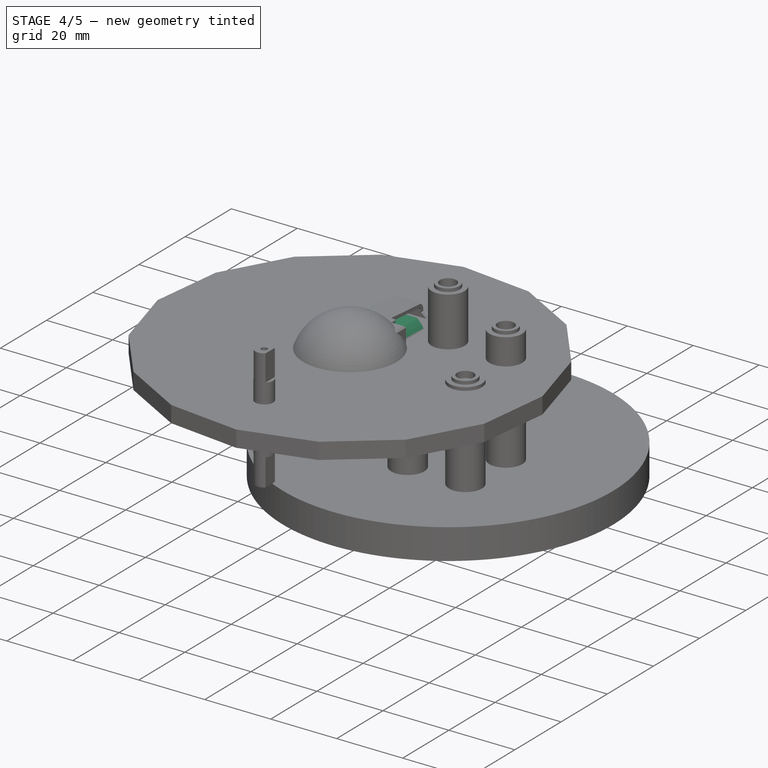
[diagram: stage 4 of 5 — iso view after this stage's code; geometry added in this stage tinted green]
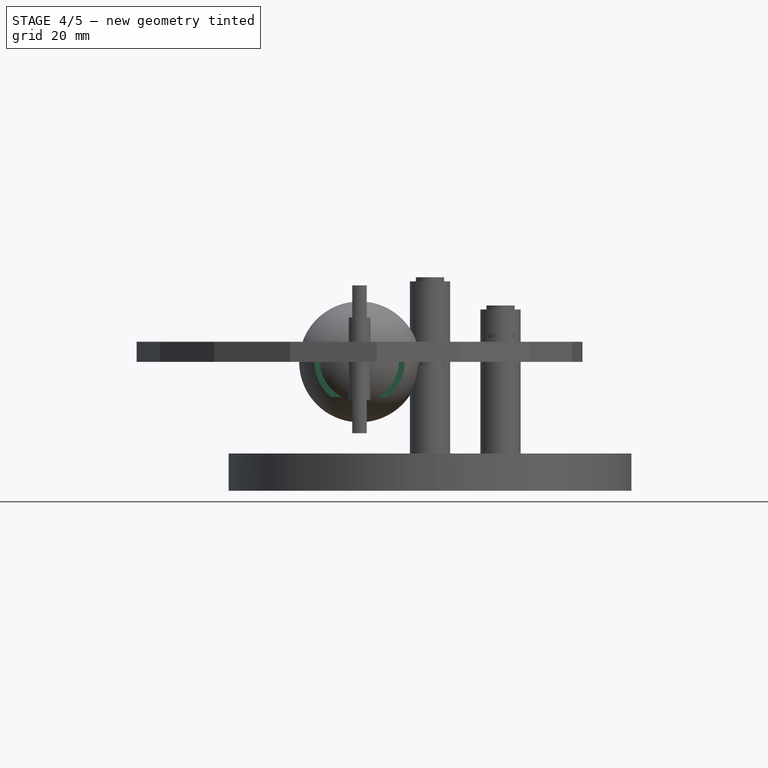
[diagram: stage 4 of 5 — front view after this stage's code; geometry added in this stage tinted green]
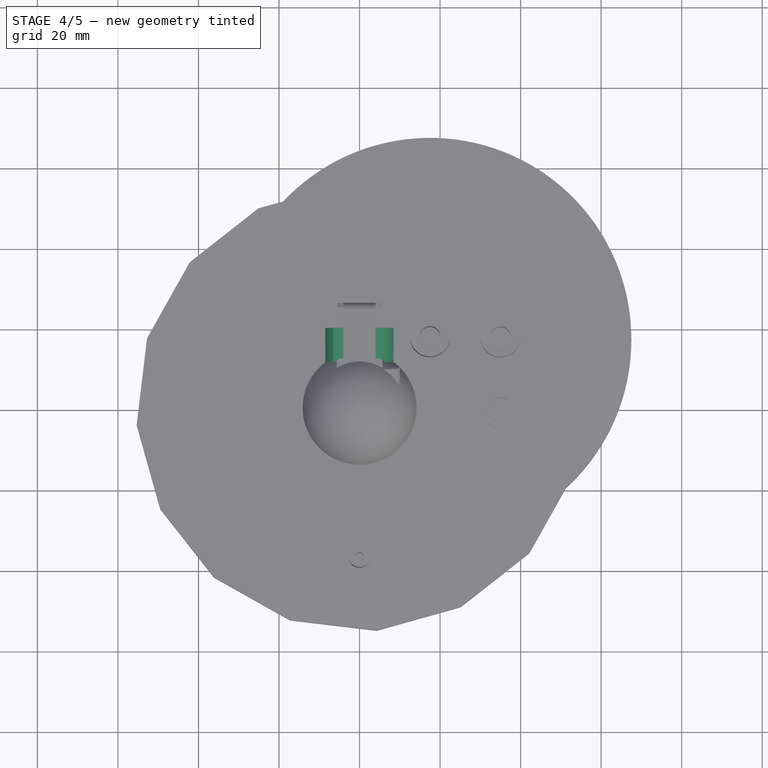
[diagram: stage 4 of 5 — top view after this stage's code; geometry added in this stage tinted green]
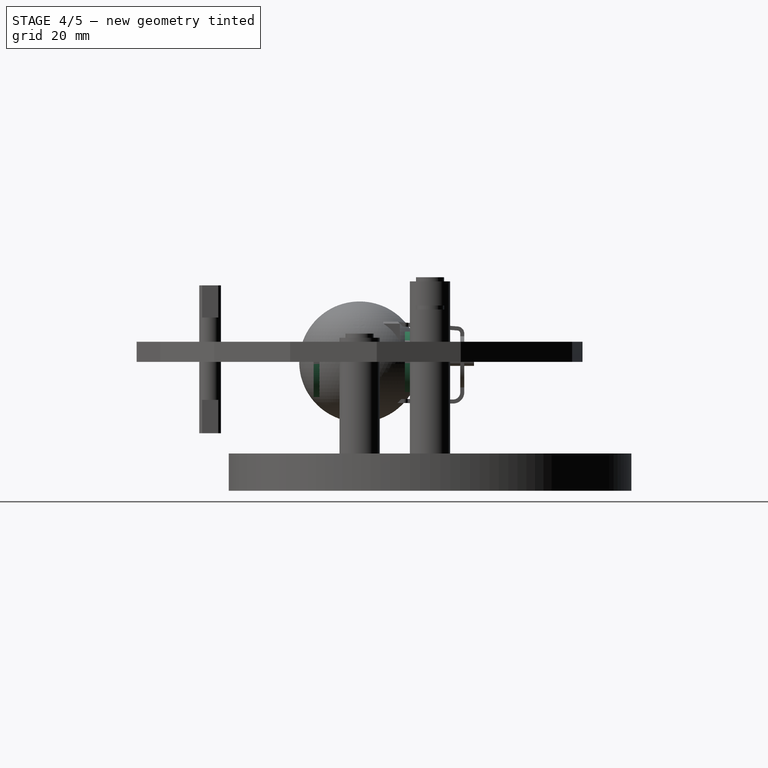
[diagram: stage 4 of 5 — right view after this stage's code; geometry added in this stage tinted green]
FEATURE [Sketcher::SketchObject] Sketch048
  FullyConstrained = true
  MapMode = 5
  Placement = pos=(0,0,0) rot=(1,0,0;1.5708rad)
  Support = -> [XZ_Plane027]
  sketch-geometry (4):
    g0: ArcOfCircle CenterX=0 CenterY=0 CenterZ=0 NormalX=0 NormalY=0 NormalZ=1 AngleXU=0 Radius=11.2 StartAngle=5.38752 EndAngle=6.28319
    g1: LineSegment StartX=7 StartY=-8.743 StartZ=0 EndX=-7 EndY=-8.743 EndZ=0
    g2: LineSegment StartX=-11.2 StartY=-2.7e-15 StartZ=0 EndX=11.2 EndY=-2.7e-15 EndZ=0
    g3: ArcOfCircle CenterX=0 CenterY=0 CenterZ=0 NormalX=0 NormalY=0 NormalZ=1 AngleXU=0 Radius=11.2 StartAngle=3.14159 EndAngle=4.03726
  constraints (12):
    c: Coincident(g0,g-1)
    c: Diameter(g0) = 22.4
    c: Horizontal(g1)
    c: DistanceX(g1,g1) = 14
    c: Horizontal(g2)
    c: PointOnObject(g2,g-1)
    c: Coincident(g0,g1)
    c: Coincident(g3,g1)
    c: Equal(g0,g3)
    c: Coincident(g0,g2)
    c: Coincident(g3,g2)
    c: Coincident(g0,g3)
FEATURE [PartDesign::Pad] Pad032
  Direction = (1,1,1)
  Length = 11.4
  Length2 = 100
  Placement = pos=(0,0,0) rot=(1,0,0;1.5708rad)
  Profile = -> Sketch048
  Refine = true
  Type = 0
FEATURE [Sketcher::SketchObject] Sketch050
  FullyConstrained = true
  MapMode = 5
  Placement = pos=(0,0,0) rot=(1,0,0;1.5708rad)
  Support = -> [XZ_Plane028]
  sketch-geometry (4):
    g0: ArcOfCircle CenterX=0 CenterY=0 CenterZ=0 NormalX=0 NormalY=0 NormalZ=1 AngleXU=0 Radius=9.9 StartAngle=2.282 EndAngle=4.00118
    g1: LineSegment StartX=-6.4622 StartY=7.5 StartZ=0 EndX=6.4622 EndY=7.5 EndZ=0
    g2: LineSegment StartX=-6.4622 StartY=-7.5 StartZ=0 EndX=6.4622 EndY=-7.5 EndZ=0
    g3: ArcOfCircle CenterX=0 CenterY=0 CenterZ=0 NormalX=0 NormalY=0 NormalZ=1 AngleXU=0 Radius=9.9 StartAngle=5.42359 EndAngle=7.14278
  constraints (12):
    c: Coincident(g0,g-1)
    c: Diameter(g0) = 19.8
    c: Horizontal(g1)
    c: Horizontal(g2)
    c: DistanceY(g2,g1) = 15
    c: Vertical(g2,g1)
    c: Coincident(g0,g1)
    c: Coincident(g3,g1)
    c: Equal(g0,g3)
    c: Coincident(g0,g2)
    c: Coincident(g3,g2)
    c: Coincident(g0,g3)
FEATURE [PartDesign::Pad] Pad036
  Direction = (1,1,1)
  Length = 19.8
  Length2 = 100
  Placement = pos=(0,0,0) rot=(1,0,0;1.5708rad)
  Profile = -> Sketch050
  Refine = true
  Reversed = true
  Type = 0
FEATURE [Sketcher::SketchObject] Sketch051
  AttachmentOffset = pos=(0,0,-17.8) rot=(0,0,1;0rad)
  FullyConstrained = true
  MapMode = 5
  Placement = pos=(0,17.8,4e-15) rot=(1,0,0;1.5708rad)
  Support = -> [XZ_Plane029]
  sketch-geometry (4):
    g0: ArcOfCircle CenterX=0 CenterY=0 CenterZ=0 NormalX=0 NormalY=0 NormalZ=1 AngleXU=0 Radius=9.6 StartAngle=2.29353 EndAngle=3.98965
    g1: LineSegment StartX=-6.3498 StartY=7.2 StartZ=0 EndX=6.3498 EndY=7.2 EndZ=0
    g2: LineSegment StartX=-6.3498 StartY=-7.2 StartZ=0 EndX=6.3498 EndY=-7.2 EndZ=0
    g3: ArcOfCircle CenterX=0 CenterY=0 CenterZ=0 NormalX=0 NormalY=0 NormalZ=1 AngleXU=0 Radius=9.6 StartAngle=5.43512 EndAngle=7.13125
  constraints (12):
    c: Coincident(g0,g-1)
    c: Diameter(g0) = 19.2
    c: Horizontal(g1)
    c: Horizontal(g2)
    c: DistanceY(g2,g1) = 14.4
    c: Vertical(g2,g1)
    c: Coincident(g0,g1)
    c: Coincident(g3,g1)
    c: Equal(g0,g3)
    c: Coincident(g0,g2)
    c: Coincident(g3,g2)
    c: Coincident(g0,g3)
FEATURE [PartDesign::Pad] Pad037
  Direction = (1,1,1)
  Length = 2
  Length2 = 100
  Placement = pos=(0,0,0) rot=(1,0,0;1.5708rad)
  Profile = -> Sketch051
  Refine = true
  Reversed = true
  Type = 0
FEATURE [PartDesign::Body] Body021  label="reductor_2"
  Group = -> [Sketch048,Pad032,Sketch046,Pad034,Sketch045,Pad033,Sketch047,Pocket008,Sketch049,Pad035,Sketch059,Pad041,Sketch060,Pocket014,Sketch061,Pocket015,Fillet014,Fillet015,Sketch062,Pocket016,Sketch063,Pocket017,Sketch064,Pad042]
  Origin = -> Origin027
  Placement = pos=(0,37.1,0) rot=(0,1,0;3.14159rad)
  Tip = -> Pad042
FEATURE [Sketcher::SketchObject] Sketch065
  ExternalGeometry = -> [Pad036]
  FullyConstrained = true
  MapMode = 5
  Placement = pos=(0,19.8,-4.4e-15) rot=(-1,0,0;1.5708rad)
  Support = -> [Pad036]
  sketch-geometry (4):
    g0: ArcOfCircle CenterX=0 CenterY=0 CenterZ=0 NormalX=0 NormalY=0 NormalZ=1 AngleXU=0 Radius=9.6 StartAngle=5.43512 EndAngle=7.13125
    g1: LineSegment StartX=-6.3498 StartY=7.2 StartZ=0 EndX=6.3498 EndY=7.2 EndZ=0
    g2: LineSegment StartX=-6.3498 StartY=-7.2 StartZ=0 EndX=6.3498 EndY=-7.2 EndZ=0
    g3: ArcOfCircle CenterX=0 CenterY=0 CenterZ=0 NormalX=0 NormalY=0 NormalZ=1 AngleXU=0 Radius=9.6 StartAngle=2.29353 EndAngle=3.98965
  constraints (12):
    c: Coincident(g0,g-1)
    c: Horizontal(g1)
    c: Horizontal(g2)
    c: DistanceY(g1,g-3) = 0.3
    c: DistanceY(g-3,g2) = 0.3
    c: Diameter(g0) = 19.2
    c: Coincident(g0,g2)
    c: Coincident(g3,g2)
    c: Equal(g0,g3)
    c: Coincident(g0,g1)
    c: Coincident(g3,g1)
    c: Coincident(g0,g3)
FEATURE [PartDesign::Pocket] Pocket018
  BaseFeature = -> Pad036
  Length = 19.3
  Length2 = 100
  Placement = pos=(0,0,0) rot=(1,0,0;1.5708rad)
  Profile = -> Sketch065
  Refine = true
  Type = 0
FEATURE [Sketcher::SketchObject] Sketch066
  ExternalGeometry = -> [Pocket018]
  FullyConstrained = true
  MapMode = 5
  Placement = pos=(0,0,0) rot=(0.57735,0.57735,0.57735;2.0944rad)
  Support = -> [YZ_Plane028]
  sketch-geometry (4):
    g0: LineSegment StartX=17.8 StartY=2 StartZ=0 EndX=19.8 EndY=2 EndZ=0
    g1: LineSegment StartX=19.8 StartY=2 StartZ=0 EndX=19.8 EndY=-2 EndZ=0
    g2: LineSegment StartX=19.8 StartY=-2 StartZ=0 EndX=17.8 EndY=-2 EndZ=0
    g3: LineSegment StartX=17.8 StartY=-2 StartZ=0 EndX=17.8 EndY=2 EndZ=0
  constraints (12):
    c: Coincident(g0,g1)
    c: Coincident(g1,g2)
    c: Coincident(g2,g3)
    c: Coincident(g3,g0)
    c: Horizontal(g0)
    c: Horizontal(g2)
    c: Vertical(g1)
    c: Vertical(g3)
    c: DistanceY(g1,g1) = 4
    c: DistanceX(g0,g0) = 2
    c: Vertical(g0,g-3)
    c: DistanceY(g-1,g0) = 2
FEATURE [PartDesign::Pocket] Pocket019
  BaseFeature = -> Pocket018
  Length = 19.8
  Length2 = 100
  Midplane = true
  Placement = pos=(0,0,0) rot=(1,0,0;1.5708rad)
  Profile = -> Sketch066
  Refine = true
  Type = 0
FEATURE [Sketcher::SketchObject] Sketch029
  ExternalGeometry = -> [Pocket019]
  FullyConstrained = true
  MapMode = 5
  Support = -> [XY_Plane028]
  sketch-geometry (16):
    g0: LineSegment StartX=-9.2 StartY=18.8 StartZ=0 EndX=-8.4 EndY=18.8 EndZ=0
    g1: LineSegment StartX=-8.4 StartY=18.8 StartZ=0 EndX=-8.4 EndY=18.5 EndZ=0
    g2: LineSegment StartX=-8.4 StartY=18.5 StartZ=0 EndX=-9.2 EndY=18.5 EndZ=0
    g3: LineSegment StartX=-9.9 StartY=17.8 StartZ=0 EndX=-9.6 EndY=17.8 EndZ=0
    g4: ArcOfCircle CenterX=-9.2 CenterY=18.1 CenterZ=0 NormalX=0 NormalY=0 NormalZ=1 AngleXU=0 Radius=0.4 StartAngle=1.5708 EndAngle=3.14159
    g5: ArcOfCircle CenterX=-9.2 CenterY=18.1 CenterZ=0 NormalX=0 NormalY=0 NormalZ=1 AngleXU=0 Radius=0.7 StartAngle=1.5708 EndAngle=3.14159
    g6: LineSegment StartX=-9.9 StartY=18.1 StartZ=0 EndX=-9.9 EndY=17.8 EndZ=0
    g7: LineSegment StartX=-9.6 StartY=18.1 StartZ=0 EndX=-9.6 EndY=17.8 EndZ=0
    g8: LineSegment StartX=9.2 StartY=18.8 StartZ=0 EndX=8.4 EndY=18.8 EndZ=0
    g9: LineSegment StartX=8.4 StartY=18.8 StartZ=0 EndX=8.4 EndY=18.5 EndZ=0
    g10: LineSegment StartX=8.4 StartY=18.5 StartZ=0 EndX=9.2 EndY=18.5 EndZ=0
    g11: LineSegment StartX=9.9 StartY=17.8 StartZ=0 EndX=9.6 EndY=17.8 EndZ=0
    g12: ArcOfCircle CenterX=9.2 CenterY=18.1 CenterZ=0 NormalX=0 NormalY=0 NormalZ=1 AngleXU=0 Radius=0.4 StartAngle=0 EndAngle=1.5708
    g13: ArcOfCircle CenterX=9.2 CenterY=18.1 CenterZ=0 NormalX=0 NormalY=0 NormalZ=1 AngleXU=0 Radius=0.7 StartAngle=0 EndAngle=1.5708
    g14: LineSegment StartX=9.9 StartY=18.1 StartZ=0 EndX=9.9 EndY=17.8 EndZ=0
    g15: LineSegment StartX=9.6 StartY=18.1 StartZ=0 EndX=9.6 EndY=17.8 EndZ=0
  constraints (41):
    c: Horizontal(g0)
    c: Coincident(g1,g0)
    c: Vertical(g1)
    c: Coincident(g2,g1)
    c: Horizontal(g2)
    c: Horizontal(g3)
    c: Tangent(g2,g4) = -1.5708
    c: Tangent(g0,g5) = 1.5708
    c: Coincident(g4,g5)
    c: DistanceY(g3,g0) = 1
    c: Coincident(g6,g3)
    c: Coincident(g7,g3)
    c: Vertical(g6)
    c: Vertical(g7)
    c: DistanceX(g3,g0) = 1.5
    c: Coincident(g3,g-3)
    c: DistanceX(g3,g3) = 0.3
    c: Tangent(g6,g5) = -1.5708
    c: Tangent(g7,g4) = -1.5708
    c: Horizontal(g8)
    c: Coincident(g9,g8)
    c: Vertical(g9)
    c: Coincident(g10,g9)
    c: Horizontal(g10)
    c: Horizontal(g11)
    c: Tangent(g10,g12) = 1.5708
    c: Tangent(g8,g13) = -1.5708
    c: Coincident(g12,g13)
    c: Coincident(g14,g11)
    c: Coincident(g15,g11)
    c: Vertical(g14)
    c: Vertical(g15)
    c: Tangent(g14,g13) = 1.5708
    c: Tangent(g15,g12) = 1.5708
    c: DistanceY(g7,g7) = 0.3
    c: DistanceY(g15,g15) = 0.3
    c: DistanceX(g11,g11) = 0.3
    c: DistanceX(g3,g11) = 19.8
    c: Horizontal(g3,g11)
    c: DistanceY(g11,g8) = 1
    c: DistanceX(g8,g11) = 1.5
FEATURE [PartDesign::Revolution] Revolution001
  Angle = 12
  Axis = (0,1,0)
  Base = (0,0,0)
  BaseFeature = -> Pocket019
  Midplane = true
  Placement = pos=(0,0,0) rot=(1,0,0;1.5708rad)
  Profile = -> Sketch029
  ReferenceAxis = -> Sketch029 [V_Axis]
  Refine = true
FEATURE [Sketcher::SketchObject] Sketch067
  FullyConstrained = true
  MapMode = 5
  Placement = pos=(0,19.8,0) rot=(-1,0,0;1.5708rad)
  Support = -> [Pad037]
  sketch-geometry (4):
    g0: ArcOfCircle CenterX=0 CenterY=0 CenterZ=0 NormalX=0 NormalY=0 NormalZ=1 AngleXU=0 Radius=9.9 StartAngle=2.282 EndAngle=4.00118
    g1: LineSegment StartX=-6.4622 StartY=7.5 StartZ=0 EndX=6.4622 EndY=7.5 EndZ=0
    g2: LineSegment StartX=-6.4622 StartY=-7.5 StartZ=0 EndX=6.4622 EndY=-7.5 EndZ=0
    g3: ArcOfCircle CenterX=0 CenterY=0 CenterZ=0 NormalX=0 NormalY=0 NormalZ=1 AngleXU=0 Radius=9.9 StartAngle=5.42359 EndAngle=7.14278
  constraints (12):
    c: Coincident(g0,g-1)
    c: Diameter(g0) = 19.8
    c: Horizontal(g1)
    c: Horizontal(g2)
    c: Vertical(g2,g1)
    c: DistanceY(g2,g1) = 15
    c: Coincident(g0,g1)
    c: Coincident(g3,g1)
    c: Equal(g0,g3)
    c: Coincident(g0,g2)
    c: Coincident(g3,g2)
    c: Coincident(g0,g3)
FEATURE [PartDesign::Pad] Pad043
  BaseFeature = -> Pad037
  Direction = (1,1,1)
  Length = 5
  Length2 = 100
  Placement = pos=(0,0,0) rot=(1,0,0;1.5708rad)
  Profile = -> Sketch067
  Refine = true
  Type = 0
FEATURE [Sketcher::SketchObject] Sketch068
  FullyConstrained = true
  MapMode = 5
  Placement = pos=(0,24.8,0) rot=(-1,0,0;1.5708rad)
  Support = -> [Pad043]
  sketch-geometry (2):
    g0: ArcOfCircle CenterX=0 CenterY=0 CenterZ=0 NormalX=0 NormalY=0 NormalZ=1 AngleXU=0 Radius=5 StartAngle=2.2143 EndAngle=7.21048
    g1: LineSegment StartX=-3 StartY=4 StartZ=0 EndX=3 EndY=4 EndZ=0
  constraints (6):
    c: Coincident(g0,g-1)
    c: Diameter(g0) = 10
    c: Horizontal(g1)
    c: DistanceY(g0,g1) = 4
    c: Coincident(g0,g1)
    c: Coincident(g0,g1)
FEATURE [PartDesign::Pad] Pad018
  BaseFeature = -> Pad043
  Direction = (1,1,1)
  Length = 2
  Length2 = 100
  Placement = pos=(0,0,0) rot=(1,0,0;1.5708rad)
  Profile = -> Sketch068
  Refine = true
  Type = 0
FEATURE [Sketcher::SketchObject] Sketch069
  FullyConstrained = true
  MapMode = 5
  Placement = pos=(0,24.8,0) rot=(-1,0,0;1.5708rad)
  Support = -> [Pad018]
  sketch-geometry (2):
    g0: Circle CenterX=-9.5 CenterY=0 CenterZ=0 NormalX=0 NormalY=0 NormalZ=1 AngleXU=0 Radius=1.6
    g1: Circle CenterX=9.5 CenterY=0 CenterZ=0 NormalX=0 NormalY=0 NormalZ=1 AngleXU=0 Radius=1.6
  constraints (6):
    c: PointOnObject(g0,g-1)
    c: Diameter(g0) = 3.2
    c: DistanceX(g0,g-1) = 9.5
    c: PointOnObject(g1,g-1)
    c: Diameter(g1) = 3.2
    c: DistanceX(g-1,g1) = 9.5
FEATURE [PartDesign::Pocket] Pocket020
  BaseFeature = -> Pad018
  Length = 6.7
  Length2 = 100
  Placement = pos=(0,0,0) rot=(1,0,0;1.5708rad)
  Profile = -> Sketch069
  Refine = true
  Type = 0
FEATURE [Sketcher::SketchObject] Sketch070
  FullyConstrained = true
  MapMode = 5
  Placement = pos=(0,0,0) rot=(1,0,0;1.5708rad)
  Support = -> [Revolution001]
  sketch-geometry (1):
    g0: Circle CenterX=0 CenterY=0 CenterZ=0 NormalX=0 NormalY=0 NormalZ=1 AngleXU=0 Radius=2.95
  constraints (2):
    c: Coincident(g0,g-1)
    c: Diameter(g0) = 5.9
FEATURE [PartDesign::Pad] Pad044
  BaseFeature = -> Revolution001
  Direction = (1,1,1)
  Length = 1.8
  Length2 = 100
  Placement = pos=(0,0,0) rot=(1,0,0;1.5708rad)
  Profile = -> Sketch070
  Refine = true
  Type = 0
FEATURE [PartDesign::Fillet] Fillet016
  Base = -> Pad044 [Edge91,Edge82,Edge92,Edge73,Edge95,Edge89,Edge52,Edge28,Edge23,Edge29,Edge19,Edge24]
  BaseFeature = -> Pad044
  Placement = pos=(0,0,0) rot=(1,0,0;1.5708rad)
  Radius = 0.3
  Refine = true
  SupportTransform = false
FEATURE [PartDesign::Fillet] Fillet017
  Base = -> Fillet016 [Edge11,Edge42]
  BaseFeature = -> Fillet016
  Placement = pos=(0,0,0) rot=(1,0,0;1.5708rad)
  Radius = 0.8
  Refine = true
  SupportTransform = false
FEATURE [PartDesign::Fillet] Fillet018
  Base = -> Fillet017 [Edge31,Edge18]
  BaseFeature = -> Fillet017
  Placement = pos=(0,0,0) rot=(1,0,0;1.5708rad)
  Radius = 0.4
  Refine = true
  SupportTransform = false
FEATURE [PartDesign::Body] Body022  label="motor_1"
  Group = -> [Sketch050,Pad036,Sketch065,Pocket018,Sketch066,Pocket019,Sketch029,Revolution001,Sketch070,Pad044,Fillet016,Fillet017,Fillet018]
  Origin = -> Origin028
  Placement = pos=(0,25.7,0) rot=(0,0,1;0rad)
  Tip = -> Fillet018
FEATURE [Sketcher::SketchObject] Sketch071
  ExternalGeometry = -> [Pocket020]
  FullyConstrained = true
  MapMode = 5
  Placement = pos=(0,-8e-16,-7.5) rot=(1,0,0;3.14159rad)
  Support = -> [Pocket020]
  sketch-geometry (4):
    g0: LineSegment StartX=-3.7 StartY=-22.8 StartZ=0 EndX=3.7 EndY=-22.8 EndZ=0
    g1: LineSegment StartX=3.7 StartY=-22.8 StartZ=0 EndX=3.7 EndY=-24.8 EndZ=0
    g2: LineSegment StartX=3.7 StartY=-24.8 StartZ=0 EndX=-3.7 EndY=-24.8 EndZ=0
    g3: LineSegment StartX=-3.7 StartY=-24.8 StartZ=0 EndX=-3.7 EndY=-22.8 EndZ=0
  constraints (12):
    c: Coincident(g0,g1)
    c: Coincident(g1,g2)
    c: Coincident(g2,g3)
    c: Coincident(g3,g0)
    c: Horizontal(g0)
    c: Horizontal(g2)
    c: Vertical(g1)
    c: Vertical(g3)
    c: DistanceX(g0,g0) = 7.4
    c: DistanceX(g2,g-1) = 3.7
    c: DistanceY(g3,g3) = 2
    c: Horizontal(g1,g-3)
FEATURE [PartDesign::Pad] Pad045
  BaseFeature = -> Pocket020
  Direction = (1,1,1)
  Length = 1.5
  Length2 = 100
  Placement = pos=(0,0,0) rot=(1,0,0;1.5708rad)
  Profile = -> Sketch071
  Refine = true
  Type = 0
FEATURE [Sketcher::SketchObject] Sketch072
  ExternalGeometry = -> [Pad045]
  FullyConstrained = true
  MapMode = 5
  Support = -> [XY_Plane029]
  sketch-geometry (3):
    g0: ArcOfCircle CenterX=-7.4 CenterY=22.3 CenterZ=0 NormalX=0 NormalY=0 NormalZ=1 AngleXU=0 Radius=2.5 StartAngle=1.5708 EndAngle=3.14159
    g1: LineSegment StartX=-9.9 StartY=24.8 StartZ=0 EndX=-7.4 EndY=24.8 EndZ=0
    g2: LineSegment StartX=-9.9 StartY=24.8 StartZ=0 EndX=-9.9 EndY=22.3 EndZ=0
  constraints (10):
    c: Horizontal(g1)
    c: Vertical(g2)
    c: Coincident(g0,g1)
    c: Coincident(g0,g2)
    c: Coincident(g1,g2)
    c: DistanceX(g1,g-1) = 9.9
    c: Horizontal(g0,g-3)
    c: Diameter(g0) = 5
    c: Vertical(g0,g0)
    c: Horizontal(g0,g0)
FEATURE [PartDesign::Groove] Groove
  Angle = 360
  Axis = (0,1,0)
  Base = (0,0,0)
  BaseFeature = -> Pad045
  Placement = pos=(0,0,0) rot=(1,0,0;1.5708rad)
  Profile = -> Sketch072
  ReferenceAxis = -> Sketch072 [V_Axis]
  Refine = true
  Reversed = true
FEATURE [PartDesign::Body] Body023  label="motor_2"
  Group = -> [Sketch051,Pad037,Sketch067,Pad043,Sketch068,Pad018,Sketch069,Pocket020,Sketch071,Pad045,Sketch072,Groove]
  Origin = -> Origin029
  Placement = pos=(0,25.7,0) rot=(0,0,1;0rad)
  Tip = -> Groove
FEATURE [PartDesign::ShapeBinder] ReferenceGroove
  Placement = pos=(0,0,0) rot=(1,0,0;1.5708rad)
  Support = -> [Groove]
  TraceSupport = false
FEATURE [Sketcher::SketchObject] Sketch073
  ExternalGeometry = -> [ReferenceGroove]
  FullyConstrained = true
  MapMode = 5
  Placement = pos=(0,-8e-16,-7.5) rot=(1,0,0;3.14159rad)
  Support = -> [ReferenceGroove]
  sketch-geometry (4):
    g0: LineSegment StartX=-4.2 StartY=-19.9 StartZ=0 EndX=4.2 EndY=-19.9 EndZ=0
    g1: LineSegment StartX=4.2 StartY=-19.9 StartZ=0 EndX=4.2 EndY=-22.8 EndZ=0
    g2: LineSegment StartX=4.2 StartY=-22.8 StartZ=0 EndX=-4.2 EndY=-22.8 EndZ=0
    g3: LineSegment StartX=-4.2 StartY=-22.8 StartZ=0 EndX=-4.2 EndY=-19.9 EndZ=0
  constraints (12):
    c: Coincident(g0,g1)
    c: Coincident(g1,g2)
    c: Coincident(g2,g3)
    c: Coincident(g3,g0)
    c: Horizontal(g0)
    c: Horizontal(g2)
    c: Vertical(g1)
    c: Vertical(g3)
    c: DistanceX(g0,g0) = 8.4
    c: DistanceX(g0,g-1) = 4.2
    c: Horizontal(g2,g-3)
    c: DistanceY(g3,g3) = 2.9
FEATURE [PartDesign::Pad] Pad046
  Direction = (1,1,1)
  Length = 1.5
  Length2 = 100
  Placement = pos=(0,0,0) rot=(1,0,0;1.5708rad)
  Profile = -> Sketch073
  Refine = true
  Type = 0
FEATURE [PartDesign::Body] Body025  label="motor_3"
  Group = -> [ReferenceGroove,Sketch073,Pad046]
  Origin = -> Origin032
  Placement = pos=(0,25.7,0) rot=(0,0,1;0rad)
  Tip = -> Pad046
FEATURE [PartDesign::ShapeBinder] ShapeBinder001
  Placement = pos=(0,0,0) rot=(1,0,0;1.5708rad)
  Support = -> [Pad046]
  TraceSupport = false
FEATURE [Sketcher::SketchObject] Sketch074
  ExternalGeometry = -> [ShapeBinder001]
  FullyConstrained = true
  MapMode = 5
  Placement = pos=(0,0,0) rot=(0.57735,0.57735,0.57735;2.0944rad)
  Support = -> [YZ_Plane033]
  sketch-geometry (4):
    g0: LineSegment StartX=20.35 StartY=-8.15 StartZ=0 EndX=22.35 EndY=-8.15 EndZ=0
    g1: LineSegment StartX=22.35 StartY=-8.15 StartZ=0 EndX=22.35 EndY=-8.35 EndZ=0
    g2: LineSegment StartX=22.35 StartY=-8.35 StartZ=0 EndX=20.35 EndY=-8.35 EndZ=0
    g3: LineSegment StartX=20.35 StartY=-8.35 StartZ=0 EndX=20.35 EndY=-8.15 EndZ=0
  constraints (12):
    c: Coincident(g0,g1)
    c: Coincident(g1,g2)
    c: Coincident(g2,g3)
    c: Coincident(g3,g0)
    c: Horizontal(g0)
    c: Horizontal(g2)
    c: Vertical(g1)
    c: Vertical(g3)
    c: DistanceX(g0,g0) = 2
    c: DistanceY(g3,g3) = 0.2
    c: DistanceY(g0,g-3) = 0.65
    c: DistanceX(g-3,g0) = 0.45
FEATURE [PartDesign::Pad] Pad047
  Direction = (1,1,1)
  Length = 15
  Length2 = 100
  Midplane = true
  Placement = pos=(0,0,0) rot=(0.57735,0.57735,0.57735;2.0944rad)
  Profile = -> Sketch074
  Refine = true
  Type = 0
FEATURE [Sketcher::SketchObject] Sketch075
  ExternalGeometry = -> [Pad047]
  FullyConstrained = false
  MapMode = 5
  Placement = pos=(2.3e-15,-3.7e-15,-8.35) rot=(0.707107,0.707107,0;3.14159rad)
  Support = -> [Pad047]
  sketch-geometry (8):
    g0: ArcOfCircle CenterX=21.35 CenterY=6.5 CenterZ=0 NormalX=0 NormalY=0 NormalZ=1 AngleXU=0 Radius=0.5 StartAngle=6.28318 EndAngle=9.42479
    g1: ArcOfCircle CenterX=21.35 CenterY=5.5 CenterZ=0 NormalX=0 NormalY=0 NormalZ=1 AngleXU=0 Radius=0.5 StartAngle=3.14159 EndAngle=6.28319
    g2: LineSegment StartX=20.85 StartY=6.5 StartZ=0 EndX=20.85 EndY=5.5 EndZ=0
    g3: LineSegment StartX=21.85 StartY=6.5 StartZ=0 EndX=21.85 EndY=5.5 EndZ=0
    g4: ArcOfCircle CenterX=21.35 CenterY=-6.5 CenterZ=0 NormalX=0 NormalY=0 NormalZ=1 AngleXU=0 Radius=0.5 StartAngle=3.14158 EndAngle=6.28319
    g5: ArcOfCircle CenterX=21.35 CenterY=-5.5 CenterZ=0 NormalX=0 NormalY=0 NormalZ=1 AngleXU=0 Radius=0.5 StartAngle=1.36628e-08 EndAngle=3.14159
    g6: LineSegment StartX=20.85 StartY=-6.5 StartZ=0 EndX=20.85 EndY=-5.5 EndZ=0
    g7: LineSegment StartX=21.85 StartY=-6.5 StartZ=0 EndX=21.85 EndY=-5.5 EndZ=0
  constraints (22):
    c: Diameter(g0) = 1
    c: Diameter(g1) = 1
    c: Vertical(g1,g0)
    c: DistanceY(g1,g0) = 1
    c: Vertical(g2)
    c: Vertical(g3)
    c: Horizontal(g2,g3)
    c: DistanceX(g2,g3) = 1
    c: DistanceX(g0,g-3) = 1
    c: DistanceY(g0,g-3) = 1
    c: Coincident(g1,g3)
    c: Coincident(g0,g3)
    c: Coincident(g0,g2)
    c: Coincident(g1,g2)
    c: Diameter(g4) = 1
    c: Diameter(g5) = 1
    c: Vertical(g6)
    c: Vertical(g7)
    c: Coincident(g5,g7)
    c: Coincident(g4,g7)
    c: Coincident(g4,g6)
    c: Coincident(g5,g6)
FEATURE [PartDesign::Pocket] Pocket021
  BaseFeature = -> Pad047
  Length = 0.2
  Length2 = 100
  Placement = pos=(0,0,0) rot=(0.57735,0.57735,0.57735;2.0944rad)
  Profile = -> Sketch075
  Refine = true
  Type = 0
FEATURE [PartDesign::Fillet] Fillet019
  Base = -> Pocket021 [Edge16,Edge14,Edge15,Edge18]
  BaseFeature = -> Pocket021
  Placement = pos=(0,0,0) rot=(0.57735,0.57735,0.57735;2.0944rad)
  Radius = 0.5
  Refine = true
  SupportTransform = false
FEATURE [Sketcher::SketchObject] Sketch077
  ExternalGeometry = -> [Pad048]
  FullyConstrained = true
  MapMode = 5
  Placement = pos=(2.7e-15,-0.105836,-10.1062) rot=(0.707102,0.707102,-0.003702;3.13419rad)
  Support = -> [Pad048]
  sketch-geometry (16):
    g0: LineSegment StartX=3.07779 StartY=-5.7 StartZ=0 EndX=12.0778 EndY=-5.7 EndZ=0
    g1: LineSegment StartX=12.0778 StartY=-5.7 StartZ=0 EndX=12.0778 EndY=-4 EndZ=0
    g2: LineSegment StartX=12.0778 StartY=-4 StartZ=0 EndX=26.0778 EndY=-4 EndZ=0
    g3: LineSegment StartX=26.0778 StartY=-4 StartZ=0 EndX=26.0778 EndY=-7.5 EndZ=0
    g4: LineSegment StartX=26.0778 StartY=-7.5 StartZ=0 EndX=3.07779 EndY=-7.5 EndZ=0
    g5: LineSegment StartX=3.07779 StartY=-7.5 StartZ=0 EndX=3.07779 EndY=-5.7 EndZ=0
    g6: LineSegment StartX=3.07779 StartY=5.7 StartZ=0 EndX=12.0778 EndY=5.7 EndZ=0
    g7: LineSegment StartX=12.0778 StartY=5.7 StartZ=0 EndX=12.0778 EndY=4 EndZ=0
    g8: LineSegment StartX=12.0778 StartY=4 StartZ=0 EndX=26.0778 EndY=4 EndZ=0
    g9: LineSegment StartX=26.0778 StartY=4 StartZ=0 EndX=26.0778 EndY=7.5 EndZ=0
    g10: LineSegment StartX=26.0778 StartY=7.5 StartZ=0 EndX=3.07779 EndY=7.5 EndZ=0
    g11: LineSegment StartX=3.07779 StartY=7.5 StartZ=0 EndX=3.07779 EndY=5.7 EndZ=0
    g12: LineSegment StartX=5.47779 StartY=2.7 StartZ=0 EndX=8.97779 EndY=2.7 EndZ=0
    g13: LineSegment StartX=8.97779 StartY=2.7 StartZ=0 EndX=8.97779 EndY=-2.7 EndZ=0
    g14: LineSegment StartX=8.97779 StartY=-2.7 StartZ=0 EndX=5.47779 EndY=-2.7 EndZ=0
    g15: LineSegment StartX=5.47779 StartY=-2.7 StartZ=0 EndX=5.47779 EndY=2.7 EndZ=0
  constraints (47):
    c: Coincident(g0,g1)
    c: Coincident(g1,g2)
    c: Horizontal(g2)
    c: Coincident(g2,g3)
    c: Coincident(g3,g4)
    c: Horizontal(g4)
    c: Coincident(g4,g5)
    c: Coincident(g5,g0)
    c: Vertical(g5)
    c: Vertical(g3)
    c: Vertical(g1)
    c: Horizontal(g0)
    c: DistanceY(g0,g-1) = 5.7
    c: DistanceY(g1,g-1) = 4
    c: Coincident(g4,g-3)
    c: DistanceX(g4,g4) = 23
    c: DistanceX(g0,g0) = 9
    c: Coincident(g6,g7)
    c: Coincident(g7,g8)
    c: Horizontal(g8)
    c: Coincident(g8,g9)
    c: Coincident(g9,g10)
    c: Horizontal(g10)
    c: Coincident(g10,g11)
    c: Coincident(g11,g6)
    c: Vertical(g11)
    c: Vertical(g9)
    c: Vertical(g7)
    c: Horizontal(g6)
    c: DistanceY(g0,g6) = 11.4
    c: DistanceY(g1,g7) = 8
    c: Vertical(g6,g0)
    c: Vertical(g1,g7)
    c: Vertical(g8,g2)
    c: DistanceY(g4,g10) = 15
    c: Coincident(g12,g13)
    c: Coincident(g13,g14)
    c: Coincident(g14,g15)
    c: Coincident(g15,g12)
    c: Horizontal(g12)
    c: Horizontal(g14)
    c: Vertical(g13)
    c: Vertical(g15)
    c: DistanceY(g15,g15) = 5.4
    c: DistanceX(g12,g12) = 3.5
    c: DistanceX(g6,g12) = 2.4
    c: DistanceY(g13,g-1) = 2.7
FEATURE [PartDesign::Pocket] Pocket022
  BaseFeature = -> Pad048
  Length = 1
  Length2 = 100
  Placement = pos=(0,0,0) rot=(0.57735,0.57735,0.57735;2.0944rad)
  Profile = -> Sketch077
  Refine = true
  Type = 0
FEATURE [Sketcher::SketchObject] Sketch078
  ExternalGeometry = -> [Pocket022]
  FullyConstrained = true
  MapMode = 5
  Placement = pos=(-2.5e-15,0.772924,10.5252) rot=(-0.036619,-0.036619,-0.998658;1.57214rad)
  Support = -> [Pocket022]
  sketch-geometry (16):
    g0: LineSegment StartX=-2.42234 StartY=7.5 StartZ=0 EndX=-25.4223 EndY=7.5 EndZ=0
    g1: LineSegment StartX=-25.4223 StartY=7.5 StartZ=0 EndX=-25.4223 EndY=4 EndZ=0
    g2: LineSegment StartX=-25.4223 StartY=4 StartZ=0 EndX=-11.4223 EndY=4 EndZ=0
    g3: LineSegment StartX=-11.4223 StartY=4 StartZ=0 EndX=-11.4223 EndY=5.7 EndZ=0
    g4: LineSegment StartX=-11.4223 StartY=5.7 StartZ=0 EndX=-2.42234 EndY=5.7 EndZ=0
    g5: LineSegment StartX=-2.42234 StartY=5.7 StartZ=0 EndX=-2.42234 EndY=7.5 EndZ=0
    g6: LineSegment StartX=-2.42234 StartY=-7.5 StartZ=0 EndX=-25.4223 EndY=-7.5 EndZ=0
    g7: LineSegment StartX=-25.4223 StartY=-7.5 StartZ=0 EndX=-25.4223 EndY=-4 EndZ=0
    g8: LineSegment StartX=-25.4223 StartY=-4 StartZ=0 EndX=-11.4223 EndY=-4 EndZ=0
    g9: LineSegment StartX=-11.4223 StartY=-4 StartZ=0 EndX=-11.4223 EndY=-5.7 EndZ=0
    g10: LineSegment StartX=-11.4223 StartY=-5.7 StartZ=0 EndX=-2.42234 EndY=-5.7 EndZ=0
    g11: LineSegment StartX=-2.42234 StartY=-5.7 StartZ=0 EndX=-2.42234 EndY=-7.5 EndZ=0
    g12: LineSegment StartX=-7.82234 StartY=2.7 StartZ=0 EndX=-4.82234 EndY=2.7 EndZ=0
    g13: LineSegment StartX=-4.82234 StartY=2.7 StartZ=0 EndX=-4.82234 EndY=-2.7 EndZ=0
    g14: LineSegment StartX=-4.82234 StartY=-2.7 StartZ=0 EndX=-7.82234 EndY=-2.7 EndZ=0
    g15: LineSegment StartX=-7.82234 StartY=-2.7 StartZ=0 EndX=-7.82234 EndY=2.7 EndZ=0
  constraints (47):
    c: Horizontal(g0)
    c: Coincident(g0,g1)
    c: Vertical(g1)
    c: Coincident(g1,g2)
    c: Horizontal(g2)
    c: Coincident(g2,g3)
    c: Vertical(g3)
    c: Coincident(g3,g4)
    c: Horizontal(g4)
    c: Coincident(g4,g5)
    c: Coincident(g5,g0)
    c: Vertical(g5)
    c: DistanceY(g-1,g4) = 5.7
    c: DistanceY(g-1,g2) = 4
    c: Coincident(g0,g-3)
    c: DistanceX(g0,g0) = 23
    c: DistanceX(g4,g4) = 9
    c: Horizontal(g6)
    c: Coincident(g6,g7)
    c: Vertical(g7)
    c: Coincident(g7,g8)
    c: Horizontal(g8)
    c: Coincident(g8,g9)
    c: Vertical(g9)
    c: Coincident(g9,g10)
    c: Horizontal(g10)
    c: Coincident(g10,g11)
    c: Coincident(g11,g6)
    c: Vertical(g11)
    c: DistanceY(g6,g0) = 15
    c: DistanceY(g10,g4) = 11.4
    c: DistanceY(g8,g2) = 8
    c: Vertical(g8,g2)
    c: Vertical(g10,g4)
    c: Vertical(g6,g1)
    c: Coincident(g12,g13)
    c: Coincident(g13,g14)
    c: Coincident(g14,g15)
    c: Coincident(g15,g12)
    c: Horizontal(g12)
    c: Horizontal(g14)
    c: Vertical(g13)
    c: Vertical(g15)
    c: DistanceY(g13,g13) = 5.4
    c: DistanceX(g14,g14) = 3
    c: DistanceX(g13,g10) = 2.4
    c: DistanceY(g14,g-1) = 2.7
FEATURE [PartDesign::Pocket] Pocket023
  BaseFeature = -> Pocket022
  Length = 1
  Length2 = 100
  Placement = pos=(0,0,0) rot=(0.57735,0.57735,0.57735;2.0944rad)
  Profile = -> Sketch078
  Refine = true
  Type = 0
FEATURE [Sketcher::SketchObject] Sketch079
  ExternalGeometry = -> [Pocket023]
  FullyConstrained = false
  MapMode = 5
  Placement = pos=(1.14e-14,26,-5.7e-15) rot=(0.57735,0.57735,0.57735;4.18879rad)
  Support = -> [Pocket023]
  sketch-geometry (18):
    g0: ArcOfCircle CenterX=0 CenterY=0 CenterZ=0 NormalX=0 NormalY=0 NormalZ=1 AngleXU=0 Radius=7.5 StartAngle=3.70413 EndAngle=4.71239
    g1: LineSegment StartX=-9.37246 StartY=-4 StartZ=0 EndX=-6.34429 EndY=-4 EndZ=0
    g2: LineSegment StartX=-9.37246 StartY=-4 StartZ=0 EndX=-9.37246 EndY=-7.5 EndZ=0
    g3: LineSegment StartX=-9.37246 StartY=-7.5 StartZ=0 EndX=-1.3136e-07 EndY=-7.5 EndZ=0
    g4: ArcOfCircle CenterX=0 CenterY=0 CenterZ=0 NormalX=0 NormalY=0 NormalZ=1 AngleXU=0 Radius=7.5 StartAngle=4.71239 EndAngle=5.72065
    g5: LineSegment StartX=9.37246 StartY=-4 StartZ=0 EndX=6.34429 EndY=-4 EndZ=0
    g6: LineSegment StartX=9.37246 StartY=-4 StartZ=0 EndX=9.37246 EndY=-7.5 EndZ=0
    g7: LineSegment StartX=9.37246 StartY=-7.5 StartZ=0 EndX=3.60745e-05 EndY=-7.5 EndZ=0
    g8: ArcOfCircle CenterX=0 CenterY=0 CenterZ=0 NormalX=0 NormalY=0 NormalZ=1 AngleXU=0 Radius=7.5 StartAngle=1.5708 EndAngle=2.57906
    g9: LineSegment StartX=-9.37246 StartY=4 StartZ=0 EndX=-6.34429 EndY=4 EndZ=0
    g10: LineSegment StartX=-9.37246 StartY=4 StartZ=0 EndX=-9.37246 EndY=7.5 EndZ=0
    g11: LineSegment StartX=-9.37246 StartY=7.5 StartZ=0 EndX=-3.60745e-05 EndY=7.5 EndZ=0
    g12: ArcOfCircle CenterX=0 CenterY=0 CenterZ=0 NormalX=0 NormalY=0 NormalZ=1 AngleXU=0 Radius=7.5 StartAngle=0.562536 EndAngle=1.57079
    g13: LineSegment StartX=9.37246 StartY=4 StartZ=0 EndX=6.34429 EndY=4 EndZ=0
    g14: LineSegment StartX=9.37246 StartY=4 StartZ=0 EndX=9.37246 EndY=7.5 EndZ=0
    g15: LineSegment StartX=9.37246 StartY=7.5 StartZ=0 EndX=3.60745e-05 EndY=7.5 EndZ=0
    g16: ArcOfCircle CenterX=0 CenterY=0 CenterZ=0 NormalX=0 NormalY=0 NormalZ=1 AngleXU=0 Radius=5 StartAngle=3.78509 EndAngle=8.78128
    g17: LineSegment StartX=-4 StartY=3 StartZ=0 EndX=-4 EndY=-3 EndZ=0
  constraints (37):
    c: Coincident(g0,g-1)
    c: Diameter(g0) = 15
    c: Coincident(g1,g-3)
    c: Horizontal(g1)
    c: Coincident(g2,g1)
    c: Coincident(g3,g2)
    c: Horizontal(g3)
    c: Coincident(g2,g-4)
    c: Coincident(g0,g1)
    c: Coincident(g0,g3)
    c: Diameter(g4) = 15
    c: Horizontal(g5)
    c: Coincident(g6,g5)
    c: Coincident(g7,g6)
    c: Horizontal(g7)
    c: Coincident(g4,g5)
    c: Coincident(g4,g7)
    c: Diameter(g8) = 15
    c: Horizontal(g9)
    c: Coincident(g10,g9)
    c: Coincident(g11,g10)
    c: Horizontal(g11)
    c: Coincident(g8,g9)
    c: Coincident(g8,g11)
    c: Diameter(g12) = 15
    c: Horizontal(g13)
    c: Coincident(g14,g13)
    c: Coincident(g15,g14)
    c: Horizontal(g15)
    c: Coincident(g12,g13)
    c: Coincident(g12,g15)
    c: Coincident(g16,g0)
    c: Diameter(g16) = 10
    c: Vertical(g17)
    c: DistanceX(g17,g-1) = 4
    c: Coincident(g16,g17)
    c: Coincident(g16,g17)
FEATURE [PartDesign::Pocket] Pocket024
  BaseFeature = -> Pocket023
  Length = 3
  Length2 = 100
  Placement = pos=(0,0,0) rot=(0.57735,0.57735,0.57735;2.0944rad)
  Profile = -> Sketch079
  Refine = true
  Type = 0
FEATURE [PartDesign::Fillet] Fillet020
  Base = -> Pocket024 [Edge67,Edge64,Edge112,Edge111,Edge110,Edge113,Edge68,Edge61]
  BaseFeature = -> Pocket024
  Placement = pos=(0,0,0) rot=(0.57735,0.57735,0.57735;2.0944rad)
  Radius = 1
  Refine = true
  SupportTransform = false
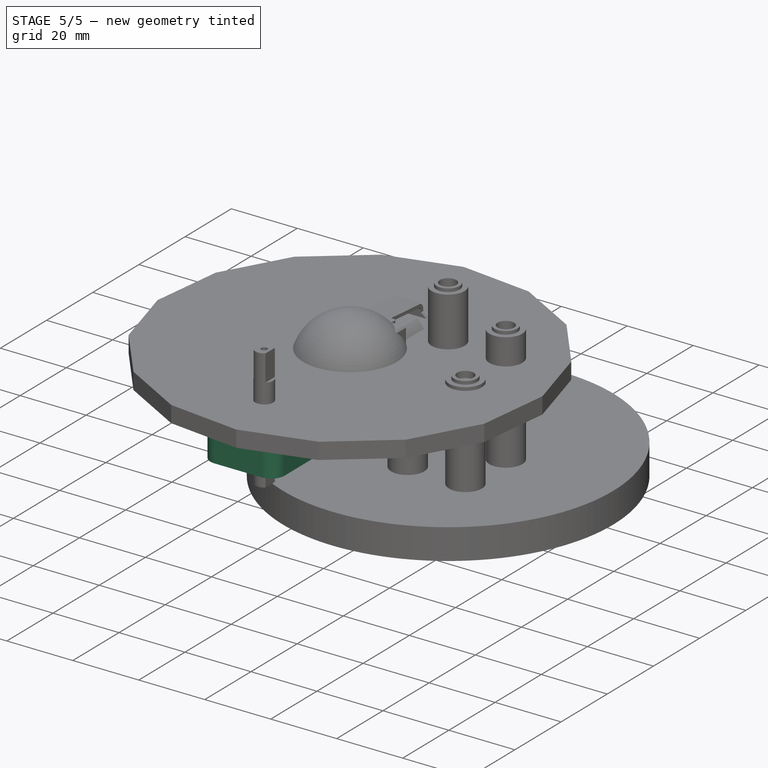
[diagram: stage 5 of 5 — iso view after this stage's code; geometry added in this stage tinted green]
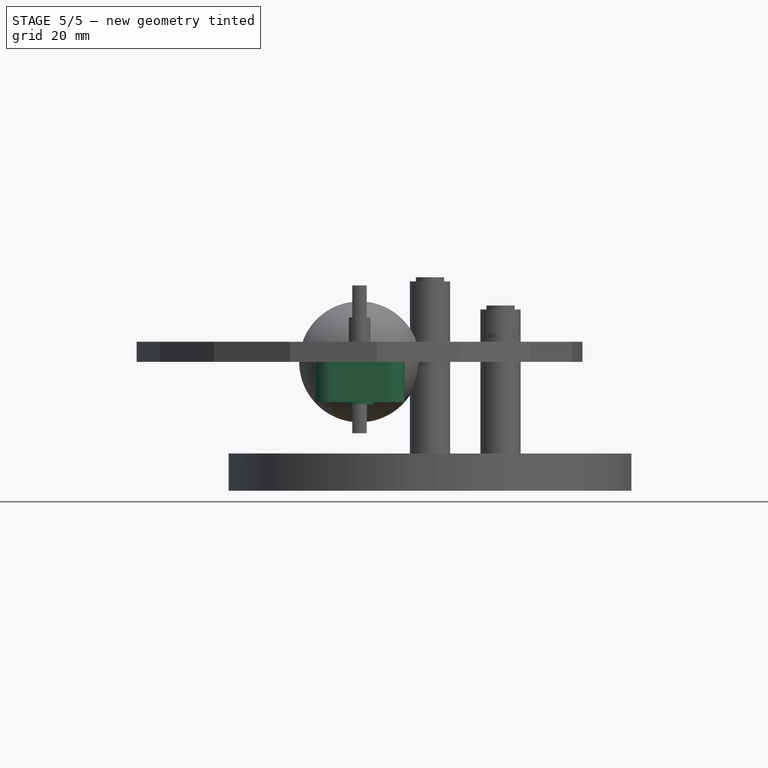
[diagram: stage 5 of 5 — front view after this stage's code; geometry added in this stage tinted green]
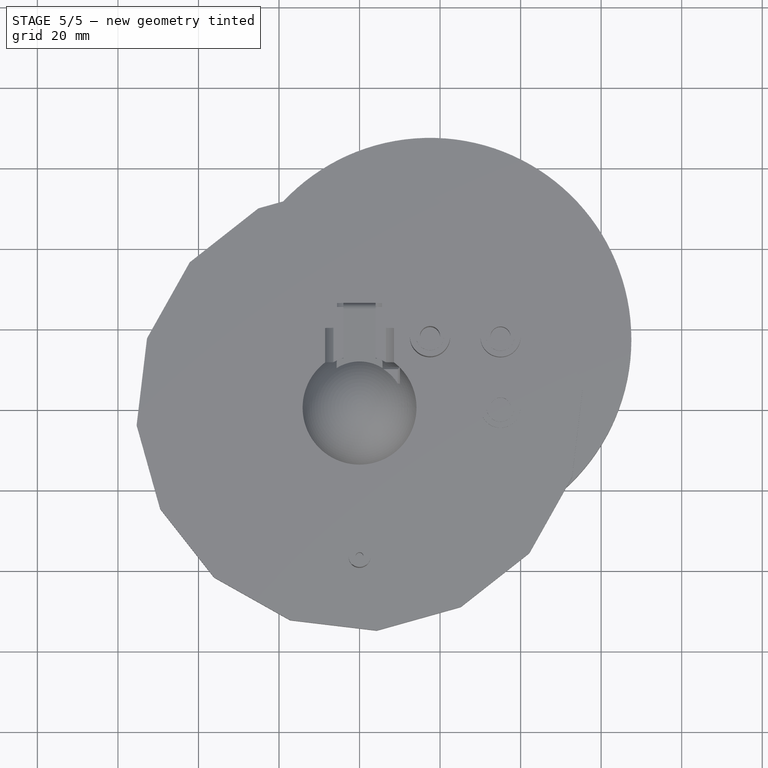
[diagram: stage 5 of 5 — top view after this stage's code; geometry added in this stage tinted green]
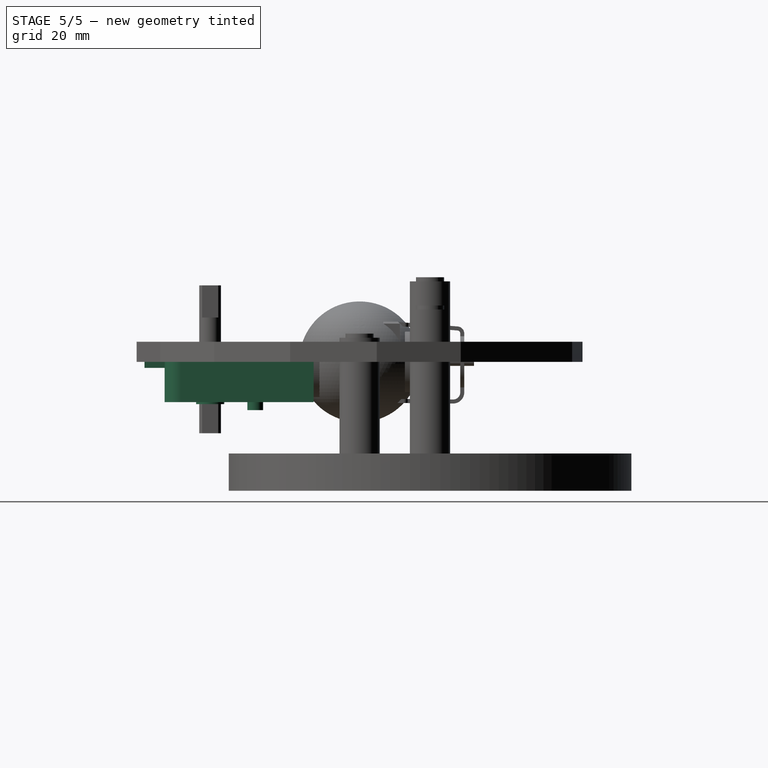
[diagram: stage 5 of 5 — right view after this stage's code; geometry added in this stage tinted green]
FEATURE [Sketcher::SketchObject] Sketch041
  FullyConstrained = true
  MapMode = 5
  Placement = pos=(0,0,0) rot=(1,0,0;1.5708rad)
  Support = -> [XZ_Plane026]
  sketch-geometry (4):
    g0: ArcOfCircle CenterX=0 CenterY=0 CenterZ=0 NormalX=0 NormalY=0 NormalZ=1 AngleXU=0 Radius=11.2 StartAngle=5.38752 EndAngle=6.28319
    g1: LineSegment StartX=7 StartY=-8.743 StartZ=0 EndX=-7 EndY=-8.743 EndZ=0
    g2: LineSegment StartX=-11.2 StartY=1.4e-15 StartZ=0 EndX=11.2 EndY=1.4e-15 EndZ=0
    g3: ArcOfCircle CenterX=0 CenterY=0 CenterZ=0 NormalX=0 NormalY=0 NormalZ=1 AngleXU=0 Radius=11.2 StartAngle=3.14159 EndAngle=4.03726
  constraints (12):
    c: Coincident(g0,g-1)
    c: Diameter(g0) = 22.4
    c: Horizontal(g1)
    c: DistanceX(g1,g1) = 14
    c: Horizontal(g2)
    c: PointOnObject(g2,g-1)
    c: Coincident(g0,g1)
    c: Coincident(g3,g1)
    c: Equal(g0,g3)
    c: Coincident(g0,g2)
    c: Coincident(g3,g2)
    c: Coincident(g0,g3)
FEATURE [PartDesign::Pad] Pad029
  Direction = (1,1,1)
  Length = 11.4
  Length2 = 100
  Placement = pos=(0,0,0) rot=(1,0,0;1.5708rad)
  Profile = -> Sketch041
  Refine = true
  Type = 0
FEATURE [Sketcher::SketchObject] Sketch042
  ExternalGeometry = -> [Pad029]
  FullyConstrained = true
  MapMode = 5
  Placement = pos=(0,-11.4,-2.5e-15) rot=(1,0,0;1.5708rad)
  Support = -> [Pad029]
  sketch-geometry (4):
    g0: LineSegment StartX=-11.2 StartY=0 StartZ=0 EndX=11.2 EndY=0 EndZ=0
    g1: LineSegment StartX=11.2 StartY=0 StartZ=0 EndX=11.2 EndY=-8.743 EndZ=0
    g2: LineSegment StartX=11.2 StartY=-8.743 StartZ=0 EndX=-11.2 EndY=-8.743 EndZ=0
    g3: LineSegment StartX=-11.2 StartY=-8.743 StartZ=0 EndX=-11.2 EndY=0 EndZ=0
  constraints (12):
    c: Coincident(g0,g1)
    c: Coincident(g1,g2)
    c: Coincident(g2,g3)
    c: Coincident(g3,g0)
    c: Horizontal(g0)
    c: Horizontal(g2)
    c: Vertical(g1)
    c: Vertical(g3)
    c: Horizontal(g0,g-1)
    c: DistanceX(g2,g2) = 22.4
    c: DistanceX(g0,g-1) = 11.2
    c: Horizontal(g1,g-3)
FEATURE [PartDesign::Pad] Pad030
  BaseFeature = -> Pad029
  Direction = (1,1,1)
  Length = 37
  Length2 = 100
  Placement = pos=(0,0,0) rot=(1,0,0;1.5708rad)
  Profile = -> Sketch042
  Refine = true
  Type = 0
FEATURE [Sketcher::SketchObject] Sketch043
  ExternalGeometry = -> [Pad030]
  FullyConstrained = true
  MapMode = 5
  Placement = pos=(0,0,5e-16) rot=(0,0,1;3.14159rad)
  Support = -> [Pad030]
  sketch-geometry (5):
    g0: LineSegment StartX=-2.5 StartY=53.4 StartZ=0 EndX=2.5 EndY=53.4 EndZ=0
    g1: LineSegment StartX=2.5 StartY=53.4 StartZ=0 EndX=2.5 EndY=48.4 EndZ=0
    g2: LineSegment StartX=2.5 StartY=48.4 StartZ=0 EndX=-2.5 EndY=48.4 EndZ=0
    g3: LineSegment StartX=-2.5 StartY=48.4 StartZ=0 EndX=-2.5 EndY=53.4 EndZ=0
    g4: Circle CenterX=0 CenterY=50.9 CenterZ=0 NormalX=0 NormalY=0 NormalZ=1 AngleXU=0 Radius=1.4
  constraints (15):
    c: Coincident(g0,g1)
    c: Coincident(g1,g2)
    c: Coincident(g2,g3)
    c: Coincident(g3,g0)
    c: Horizontal(g0)
    c: Horizontal(g2)
    c: Vertical(g1)
    c: Vertical(g3)
    c: DistanceY(g3,g3) = 5
    c: DistanceX(g2,g2) = 5
    c: DistanceX(g-1,g1) = 2.5
    c: Horizontal(g1,g-3)
    c: PointOnObject(g4,g-2)
    c: DistanceY(g1,g4) = 2.5
    c: Diameter(g4) = 2.8
FEATURE [PartDesign::Pad] Pad031
  BaseFeature = -> Pad030
  Direction = (1,1,1)
  Length = 1.5
  Length2 = 100
  Placement = pos=(0,0,0) rot=(1,0,0;1.5708rad)
  Profile = -> Sketch043
  Refine = true
  Reversed = true
  Type = 0
FEATURE [Sketcher::SketchObject] Sketch044
  ExternalGeometry = -> [Pad031]
  FullyConstrained = true
  MapMode = 5
  Placement = pos=(0,0,5e-16) rot=(0,0,1;3.14159rad)
  Support = -> [Pad031]
  sketch-geometry (5):
    g0: Circle CenterX=0 CenterY=37.1 CenterZ=0 NormalX=0 NormalY=0 NormalZ=1 AngleXU=0 Radius=2.7
    g1: Circle CenterX=8.7 CenterY=16.4 CenterZ=0 NormalX=0 NormalY=0 NormalZ=1 AngleXU=0 Radius=1.45
    g2: Circle CenterX=-8.7 CenterY=16.4 CenterZ=0 NormalX=0 NormalY=0 NormalZ=1 AngleXU=0 Radius=1.45
    g3: Circle CenterX=-9.2 CenterY=13.4 CenterZ=0 NormalX=0 NormalY=0 NormalZ=1 AngleXU=0 Radius=1
    g4: Circle CenterX=9.2 CenterY=13.4 CenterZ=0 NormalX=0 NormalY=0 NormalZ=1 AngleXU=0 Radius=1
  constraints (15):
    c: PointOnObject(g0,g-2)
    c: DistanceY(g0,g-3) = 11.3
    c: Diameter(g0) = 5.4
    c: DistanceY(g-4,g1) = 16.4
    c: Horizontal(g2,g1)
    c: DistanceX(g1,g-4) = 2.5
    c: DistanceX(g-5,g2) = 2.5
    c: Diameter(g1) = 2.9
    c: Diameter(g2) = 2.9
    c: Diameter(g4) = 2
    c: Diameter(g3) = 2
    c: DistanceY(g-5,g4) = 13.4
    c: Horizontal(g3,g4)
    c: DistanceX(g4,g-5) = 2
    c: DistanceX(g-5,g3) = 2
FEATURE [PartDesign::Pocket] Pocket007
  BaseFeature = -> Pad031
  Length = 8.75
  Length2 = 100
  Placement = pos=(0,0,0) rot=(1,0,0;1.5708rad)
  Profile = -> Sketch044
  Refine = true
  Type = 0
FEATURE [Sketcher::SketchObject] Sketch046
  ExternalGeometry = -> [Pad032]
  FullyConstrained = true
  MapMode = 5
  Placement = pos=(0,-11.4,-2.5e-15) rot=(1,0,0;1.5708rad)
  Support = -> [Pad032]
  sketch-geometry (4):
    g0: LineSegment StartX=-11.2 StartY=0 StartZ=0 EndX=11.2 EndY=0 EndZ=0
    g1: LineSegment StartX=11.2 StartY=0 StartZ=0 EndX=11.2 EndY=-10 EndZ=0
    g2: LineSegment StartX=11.2 StartY=-10 StartZ=0 EndX=-11.2 EndY=-10 EndZ=0
    g3: LineSegment StartX=-11.2 StartY=-10 StartZ=0 EndX=-11.2 EndY=0 EndZ=0
  constraints (12):
    c: Coincident(g0,g1)
    c: Coincident(g1,g2)
    c: Coincident(g2,g3)
    c: Coincident(g3,g0)
    c: Horizontal(g0)
    c: Horizontal(g2)
    c: Vertical(g1)
    c: Vertical(g3)
    c: Horizontal(g0,g-1)
    c: DistanceX(g2,g2) = 22.4
    c: DistanceX(g0,g-1) = 11.2
    c: DistanceY(g1,g1) = 10
FEATURE [PartDesign::Pad] Pad034
  BaseFeature = -> Pad032
  Direction = (1,1,1)
  Length = 37
  Length2 = 100
  Placement = pos=(0,0,0) rot=(1,0,0;1.5708rad)
  Profile = -> Sketch046
  Refine = true
  Type = 0
FEATURE [Sketcher::SketchObject] Sketch045
  ExternalGeometry = -> [Pad034]
  FullyConstrained = true
  MapMode = 5
  Placement = pos=(0,0,-1.4e-15) rot=(0,0,1;3.14159rad)
  Support = -> [Pad034]
  sketch-geometry (5):
    g0: LineSegment StartX=-2.5 StartY=53.4 StartZ=0 EndX=2.5 EndY=53.4 EndZ=0
    g1: LineSegment StartX=2.5 StartY=53.4 StartZ=0 EndX=2.5 EndY=48.4 EndZ=0
    g2: LineSegment StartX=2.5 StartY=48.4 StartZ=0 EndX=-2.5 EndY=48.4 EndZ=0
    g3: LineSegment StartX=-2.5 StartY=48.4 StartZ=0 EndX=-2.5 EndY=53.4 EndZ=0
    g4: Circle CenterX=0 CenterY=50.9 CenterZ=0 NormalX=0 NormalY=0 NormalZ=1 AngleXU=0 Radius=1.4
  constraints (15):
    c: Coincident(g0,g1)
    c: Coincident(g1,g2)
    c: Coincident(g2,g3)
    c: Coincident(g3,g0)
    c: Horizontal(g0)
    c: Horizontal(g2)
    c: Vertical(g1)
    c: Vertical(g3)
    c: DistanceY(g3,g3) = 5
    c: DistanceX(g2,g2) = 5
    c: DistanceX(g-1,g1) = 2.5
    c: Horizontal(g1,g-3)
    c: PointOnObject(g4,g-2)
    c: DistanceY(g1,g4) = 2.5
    c: Diameter(g4) = 2.8
FEATURE [PartDesign::Pad] Pad033
  BaseFeature = -> Pad034
  Direction = (1,1,1)
  Length = 1.5
  Length2 = 100
  Placement = pos=(0,0,0) rot=(1,0,0;1.5708rad)
  Profile = -> Sketch045
  Refine = true
  Reversed = true
  Type = 0
FEATURE [Sketcher::SketchObject] Sketch047
  ExternalGeometry = -> [Pad033]
  FullyConstrained = true
  MapMode = 5
  Placement = pos=(0,0,-1.7e-15) rot=(0,0,1;3.14159rad)
  Support = -> [Pad033]
  sketch-geometry (5):
    g0: Circle CenterX=0 CenterY=37.1 CenterZ=0 NormalX=0 NormalY=0 NormalZ=1 AngleXU=0 Radius=2.7
    g1: Circle CenterX=8.7 CenterY=16.4 CenterZ=0 NormalX=0 NormalY=0 NormalZ=1 AngleXU=0 Radius=1.45
    g2: Circle CenterX=-8.7 CenterY=16.4 CenterZ=0 NormalX=0 NormalY=0 NormalZ=1 AngleXU=0 Radius=1.45
    g3: Circle CenterX=9.2 CenterY=13.4 CenterZ=0 NormalX=0 NormalY=0 NormalZ=1 AngleXU=0 Radius=1
    g4: Circle CenterX=-9.2 CenterY=13.4 CenterZ=0 NormalX=0 NormalY=0 NormalZ=1 AngleXU=0 Radius=1
  constraints (15):
    c: PointOnObject(g0,g-2)
    c: DistanceY(g0,g-3) = 11.3
    c: Diameter(g0) = 5.4
    c: Horizontal(g2,g1)
    c: Diameter(g1) = 2.9
    c: Diameter(g2) = 2.9
    c: Diameter(g4) = 2
    c: Diameter(g3) = 2
    c: Horizontal(g3,g4)
    c: DistanceY(g-4,g1) = 16.4
    c: DistanceX(g1,g-4) = 2.5
    c: DistanceY(g-5,g3) = 13.4
    c: DistanceX(g-5,g2) = 2.5
    c: DistanceX(g-5,g4) = 2
    c: DistanceX(g3,g-4) = 2
FEATURE [PartDesign::Pocket] Pocket008
  BaseFeature = -> Pad033
  Length = 10
  Length2 = 100
  Placement = pos=(0,0,0) rot=(1,0,0;1.5708rad)
  Profile = -> Sketch047
  Refine = true
  Type = 0
FEATURE [Sketcher::SketchObject] Sketch049
  FullyConstrained = false
  MapMode = 5
  Placement = pos=(0,0,-10) rot=(1,0,0;3.14159rad)
  sketch-geometry (2):
    g0: Circle CenterX=0 CenterY=37.1 CenterZ=0 NormalX=0 NormalY=0 NormalZ=1 AngleXU=0 Radius=2.7
    g1: Circle CenterX=0 CenterY=37.1 CenterZ=0 NormalX=0 NormalY=0 NormalZ=1 AngleXU=0 Radius=3.5
  constraints (2):
    c: Coincident(g1,g0)
    c: Diameter(g1) = 7
FEATURE [PartDesign::Pad] Pad035
  BaseFeature = -> Pocket008
  Direction = (1,1,1)
  Length = 0.5
  Length2 = 100
  Placement = pos=(0,0,0) rot=(1,0,0;1.5708rad)
  Profile = -> Sketch049
  Refine = true
  Type = 0
FEATURE [Sketcher::SketchObject] Sketch054
  ExternalGeometry = -> [Pocket007]
  FullyConstrained = true
  MapMode = 5
  Placement = pos=(0,0,0) rot=(-1,0,0;1.5708rad)
  Support = -> [Pocket007]
  sketch-geometry (4):
    g0: ArcOfCircle CenterX=0 CenterY=0 CenterZ=0 NormalX=0 NormalY=0 NormalZ=1 AngleXU=0 Radius=10.2 StartAngle=2.27964 EndAngle=3.14159
    g1: LineSegment StartX=-6.63973 StartY=7.743 StartZ=0 EndX=6.63973 EndY=7.743 EndZ=0
    g2: LineSegment StartX=-10.2 StartY=0 StartZ=0 EndX=10.2 EndY=0 EndZ=0
    g3: ArcOfCircle CenterX=0 CenterY=0 CenterZ=0 NormalX=0 NormalY=0 NormalZ=1 AngleXU=0 Radius=10.2 StartAngle=0 EndAngle=0.861956
  constraints (12):
    c: Coincident(g0,g-1)
    c: Horizontal(g1)
    c: Horizontal(g2)
    c: DistanceY(g1,g-4) = 1
    c: DistanceX(g-4,g2) = 1
    c: Horizontal(g2,g-4)
    c: Coincident(g0,g1)
    c: Coincident(g3,g1)
    c: Equal(g0,g3)
    c: Coincident(g0,g2)
    c: Coincident(g3,g2)
    c: Coincident(g0,g3)
FEATURE [PartDesign::Pocket] Pocket010
  BaseFeature = -> Pocket007
  Length = 11.4
  Length2 = 100
  Placement = pos=(0,0,0) rot=(1,0,0;1.5708rad)
  Profile = -> Sketch054
  Refine = true
  Type = 0
FEATURE [Sketcher::SketchObject] Sketch055
  ExternalGeometry = -> [Pocket010]
  FullyConstrained = true
  MapMode = 5
  Placement = pos=(0,0,5e-16) rot=(0,0,1;3.14159rad)
  Support = -> [Pocket010]
  sketch-geometry (4):
    g0: LineSegment StartX=-10.2 StartY=47.4 StartZ=0 EndX=10.2 EndY=47.4 EndZ=0
    g1: LineSegment StartX=10.2 StartY=47.4 StartZ=0 EndX=10.2 EndY=12.4 EndZ=0
    g2: LineSegment StartX=10.2 StartY=12.4 StartZ=0 EndX=-10.2 EndY=12.4 EndZ=0
    g3: LineSegment StartX=-10.2 StartY=12.4 StartZ=0 EndX=-10.2 EndY=47.4 EndZ=0
  constraints (12):
    c: Coincident(g0,g1)
    c: Coincident(g1,g2)
    c: Coincident(g2,g3)
    c: Coincident(g3,g0)
    c: Horizontal(g0)
    c: Horizontal(g2)
    c: Vertical(g1)
    c: Vertical(g3)
    c: DistanceY(g0,g-3) = 1
    c: DistanceY(g-3,g1) = 1
    c: DistanceX(g0,g-3) = 1
    c: DistanceX(g-4,g0) = 1
FEATURE [PartDesign::Pocket] Pocket011
  BaseFeature = -> Pocket010
  Length = 7.743
  Length2 = 100
  Placement = pos=(0,0,0) rot=(1,0,0;1.5708rad)
  Profile = -> Sketch055
  Refine = true
  Type = 0
  expr: Length = 7.743
FEATURE [PartDesign::Fillet] Fillet012
  Base = -> Pocket011 [Edge72,Edge73]
  BaseFeature = -> Pocket011
  Placement = pos=(0,0,0) rot=(1,0,0;1.5708rad)
  Radius = 3.2
  Refine = true
  SupportTransform = false
FEATURE [PartDesign::Fillet] Fillet013
  Base = -> Fillet012 [Edge54,Edge50]
  BaseFeature = -> Fillet012
  Placement = pos=(0,0,0) rot=(1,0,0;1.5708rad)
  Radius = 4
  Refine = true
  SupportTransform = false
FEATURE [Sketcher::SketchObject] Sketch056
  FullyConstrained = true
  MapMode = 5
  Placement = pos=(0,-11.4,-2.5e-15) rot=(-1,0,0;1.5708rad)
  Support = -> [Fillet013]
  sketch-geometry (1):
    g0: Circle CenterX=0 CenterY=0 CenterZ=0 NormalX=0 NormalY=0 NormalZ=1 AngleXU=0 Radius=3
  constraints (2):
    c: Coincident(g0,g-1)
    c: Diameter(g0) = 6
FEATURE [PartDesign::Pocket] Pocket012
  BaseFeature = -> Fillet013
  Length = 1
  Length2 = 100
  Placement = pos=(0,0,0) rot=(1,0,0;1.5708rad)
  Profile = -> Sketch056
  Refine = true
  Type = 0
FEATURE [Sketcher::SketchObject] Sketch057
  FullyConstrained = true
  MapMode = 5
  Placement = pos=(-3e-16,9e-16,-8.743) rot=(1,0,0;3.14159rad)
  Support = -> [Pocket012]
  sketch-geometry (4):
    g0: LineSegment StartX=-3 StartY=7.5 StartZ=0 EndX=3 EndY=7.5 EndZ=0
    g1: LineSegment StartX=3 StartY=7.5 StartZ=0 EndX=3 EndY=5.5 EndZ=0
    g2: LineSegment StartX=3 StartY=5.5 StartZ=0 EndX=-3 EndY=5.5 EndZ=0
    g3: LineSegment StartX=-3 StartY=5.5 StartZ=0 EndX=-3 EndY=7.5 EndZ=0
  constraints (12):
    c: Coincident(g0,g1)
    c: Coincident(g1,g2)
    c: Coincident(g2,g3)
    c: Coincident(g3,g0)
    c: Horizontal(g0)
    c: Horizontal(g2)
    c: Vertical(g1)
    c: Vertical(g3)
    c: DistanceY(g-1,g1) = 5.5
    c: DistanceY(g1,g1) = 2
    c: DistanceX(g0,g0) = 6
    c: DistanceX(g2,g-1) = 3
FEATURE [PartDesign::Pocket] Pocket013
  BaseFeature = -> Pocket012
  Length = 1
  Length2 = 100
  Placement = pos=(0,0,0) rot=(1,0,0;1.5708rad)
  Profile = -> Sketch057
  Refine = true
  Type = 0
FEATURE [Sketcher::SketchObject] Sketch058
  ExternalGeometry = -> [Pocket013]
  FullyConstrained = true
  MapMode = 5
  Placement = pos=(0,0,0) rot=(0.57735,0.57735,0.57735;2.0944rad)
  Support = -> [YZ_Plane026]
  sketch-geometry (6):
    g0: LineSegment StartX=-5.5 StartY=-8.743 StartZ=0 EndX=-5.8 EndY=-10.243 EndZ=0
    g1: LineSegment StartX=-5.8 StartY=-10.243 StartZ=0 EndX=-6.8 EndY=-10.243 EndZ=0
    g2: LineSegment StartX=-6.8 StartY=-10.243 StartZ=0 EndX=-6.8 EndY=-11.243 EndZ=0
    g3: LineSegment StartX=-6.8 StartY=-11.243 StartZ=0 EndX=-5 EndY=-11.243 EndZ=0
    g4: LineSegment StartX=-5 StartY=-11.243 StartZ=0 EndX=-4.5 EndY=-8.743 EndZ=0
    g5: LineSegment StartX=-4.5 StartY=-8.743 StartZ=0 EndX=-5.5 EndY=-8.743 EndZ=0
  constraints (17):
    c: Coincident(g0,g-3)
    c: Coincident(g1,g0)
    c: Horizontal(g1)
    c: Coincident(g2,g1)
    c: Coincident(g3,g2)
    c: Horizontal(g3)
    c: Coincident(g4,g3)
    c: Coincident(g5,g4)
    c: Coincident(g5,g0)
    c: Horizontal(g5)
    c: Vertical(g2)
    c: DistanceX(g-3,g1) = 0.7
    c: DistanceX(g5,g5) = 1
    c: Parallel(g0,g4)
    c: DistanceY(g2,g2) = 1
    c: DistanceY(g2,g-3) = 2.5
    c: DistanceX(g1,g1) = 1
FEATURE [PartDesign::Pad] Pad040
  BaseFeature = -> Pocket013
  Direction = (1,1,1)
  Length = 5.3
  Length2 = 100
  Midplane = true
  Placement = pos=(0,0,0) rot=(1,0,0;1.5708rad)
  Profile = -> Sketch058
  Refine = true
  Type = 0
FEATURE [PartDesign::Body] Body020  label="reductor_1"
  Group = -> [Sketch041,Pad029,Sketch042,Pad030,Sketch043,Pad031,Sketch044,Pocket007,Sketch054,Pocket010,Sketch055,Pocket011,Fillet012,Fillet013,Sketch056,Pocket012,Sketch057,Pocket013,Sketch058,Pad040]
  Origin = -> Origin026
  Placement = pos=(0,37.1,0) rot=(0,0,1;0rad)
  Tip = -> Pad040
FEATURE [Sketcher::SketchObject] Sketch059
  ExternalGeometry = -> [Pad035]
  FullyConstrained = true
  MapMode = 5
  Placement = pos=(0,0,-10) rot=(1,0,0;3.14159rad)
  Support = -> [Pad035]
  sketch-geometry (1):
    g0: Circle CenterX=0 CenterY=25.9 CenterZ=0 NormalX=0 NormalY=0 NormalZ=1 AngleXU=0 Radius=1.95
  constraints (3):
    c: PointOnObject(g0,g-2)
    c: Diameter(g0) = 3.9
    c: DistanceY(g0,g-3) = 22.5
FEATURE [PartDesign::Pad] Pad041
  BaseFeature = -> Pad035
  Direction = (1,1,1)
  Length = 2
  Length2 = 100
  Placement = pos=(0,0,0) rot=(1,0,0;1.5708rad)
  Profile = -> Sketch059
  Refine = true
  Type = 0
FEATURE [Sketcher::SketchObject] Sketch060
  ExternalGeometry = -> [Pad041]
  FullyConstrained = true
  MapMode = 5
  Placement = pos=(0,0,0) rot=(-1,0,0;1.5708rad)
  Support = -> [Pad041]
  sketch-geometry (4):
    g0: ArcOfCircle CenterX=0 CenterY=0 CenterZ=0 NormalX=0 NormalY=0 NormalZ=1 AngleXU=0 Radius=10.2 StartAngle=2.27964 EndAngle=3.14159
    g1: LineSegment StartX=-6.63973 StartY=7.743 StartZ=0 EndX=6.63973 EndY=7.743 EndZ=0
    g2: LineSegment StartX=10.2 StartY=-3.3e-15 StartZ=0 EndX=-10.2 EndY=-3.3e-15 EndZ=0
    g3: ArcOfCircle CenterX=0 CenterY=0 CenterZ=0 NormalX=0 NormalY=0 NormalZ=1 AngleXU=0 Radius=10.2 StartAngle=0 EndAngle=0.861956
  constraints (12):
    c: Coincident(g0,g-1)
    c: Horizontal(g1)
    c: Horizontal(g2)
    c: DistanceY(g1,g-5) = 1
    c: DistanceX(g-3,g2) = 1
    c: Horizontal(g2,g-3)
    c: Coincident(g0,g1)
    c: Coincident(g3,g1)
    c: Equal(g0,g3)
    c: Coincident(g0,g2)
    c: Coincident(g3,g2)
    c: Coincident(g0,g3)
FEATURE [PartDesign::Pocket] Pocket014
  BaseFeature = -> Pad041
  Length = 11.4
  Length2 = 100
  Placement = pos=(0,0,0) rot=(1,0,0;1.5708rad)
  Profile = -> Sketch060
  Refine = true
  Type = 0
FEATURE [Sketcher::SketchObject] Sketch061
  ExternalGeometry = -> [Pocket014]
  FullyConstrained = true
  MapMode = 5
  Placement = pos=(0,0,-1.7e-15) rot=(0,0,1;3.14159rad)
  Support = -> [Pocket014]
  sketch-geometry (4):
    g0: LineSegment StartX=-10.2 StartY=47.4 StartZ=0 EndX=10.2 EndY=47.4 EndZ=0
    g1: LineSegment StartX=10.2 StartY=47.4 StartZ=0 EndX=10.2 EndY=12.4 EndZ=0
    g2: LineSegment StartX=10.2 StartY=12.4 StartZ=0 EndX=-10.2 EndY=12.4 EndZ=0
    g3: LineSegment StartX=-10.2 StartY=12.4 StartZ=0 EndX=-10.2 EndY=47.4 EndZ=0
  constraints (12):
    c: Coincident(g0,g1)
    c: Coincident(g1,g2)
    c: Coincident(g2,g3)
    c: Coincident(g3,g0)
    c: Horizontal(g0)
    c: Horizontal(g2)
    c: Vertical(g1)
    c: Vertical(g3)
    c: DistanceY(g0,g-4) = 1
    c: DistanceX(g-4,g0) = 1
    c: DistanceX(g0,g-3) = 1
    c: DistanceY(g-3,g1) = 1
FEATURE [PartDesign::Pocket] Pocket015
  BaseFeature = -> Pocket014
  Length = 9
  Length2 = 100
  Placement = pos=(0,0,0) rot=(1,0,0;1.5708rad)
  Profile = -> Sketch061
  Refine = true
  Type = 0
FEATURE [PartDesign::Fillet] Fillet014
  Base = -> Pocket015 [Edge52,Edge53]
  BaseFeature = -> Pocket015
  Placement = pos=(0,0,0) rot=(1,0,0;1.5708rad)
  Radius = 3.2
  Refine = true
  SupportTransform = false
FEATURE [PartDesign::Fillet] Fillet015
  Base = -> Fillet014 [Edge54,Edge50]
  BaseFeature = -> Fillet014
  Placement = pos=(0,0,0) rot=(1,0,0;1.5708rad)
  Radius = 4
  Refine = true
  SupportTransform = false
FEATURE [Sketcher::SketchObject] Sketch062
  FullyConstrained = true
  MapMode = 5
  Placement = pos=(0,-11.4,2.5e-15) rot=(-1,0,0;1.5708rad)
  Support = -> [Fillet015]
  sketch-geometry (1):
    g0: Circle CenterX=0 CenterY=0 CenterZ=0 NormalX=0 NormalY=0 NormalZ=1 AngleXU=0 Radius=3
  constraints (2):
    c: Diameter(g0) = 6
    c: Coincident(g0,g-1)
FEATURE [PartDesign::Pocket] Pocket016
  BaseFeature = -> Fillet015
  Length = 1
  Length2 = 100
  Placement = pos=(0,0,0) rot=(1,0,0;1.5708rad)
  Profile = -> Sketch062
  Refine = true
  Type = 0
FEATURE [Sketcher::SketchObject] Sketch063
  FullyConstrained = true
  MapMode = 5
  Placement = pos=(0,0,-8.743) rot=(1,0,0;3.14159rad)
  Support = -> [Pocket016]
  sketch-geometry (4):
    g0: LineSegment StartX=-3 StartY=7.5 StartZ=0 EndX=3 EndY=7.5 EndZ=0
    g1: LineSegment StartX=3 StartY=7.5 StartZ=0 EndX=3 EndY=5.5 EndZ=0
    g2: LineSegment StartX=3 StartY=5.5 StartZ=0 EndX=-3 EndY=5.5 EndZ=0
    g3: LineSegment StartX=-3 StartY=5.5 StartZ=0 EndX=-3 EndY=7.5 EndZ=0
  constraints (12):
    c: Coincident(g0,g1)
    c: Coincident(g1,g2)
    c: Coincident(g2,g3)
    c: Coincident(g3,g0)
    c: Horizontal(g0)
    c: Horizontal(g2)
    c: Vertical(g1)
    c: Vertical(g3)
    c: DistanceY(g-1,g1) = 5.5
    c: DistanceY(g1,g1) = 2
    c: DistanceX(g0,g0) = 6
    c: DistanceX(g2,g-1) = 3
FEATURE [PartDesign::Pocket] Pocket017
  BaseFeature = -> Pocket016
  Length = 1
  Length2 = 100
  Placement = pos=(0,0,0) rot=(1,0,0;1.5708rad)
  Profile = -> Sketch063
  Refine = true
  Type = 0
FEATURE [Sketcher::SketchObject] Sketch064
  ExternalGeometry = -> [Pocket017]
  FullyConstrained = true
  MapMode = 5
  Placement = pos=(0,0,0) rot=(0.57735,0.57735,0.57735;2.0944rad)
  Support = -> [YZ_Plane027]
  sketch-geometry (6):
    g0: LineSegment StartX=-6.8 StartY=-11.243 StartZ=0 EndX=-6.8 EndY=-10.243 EndZ=0
    g1: LineSegment StartX=-6.8 StartY=-10.243 StartZ=0 EndX=-5.8 EndY=-10.243 EndZ=0
    g2: LineSegment StartX=-5.8 StartY=-10.243 StartZ=0 EndX=-5.5 EndY=-8.743 EndZ=0
    g3: LineSegment StartX=-5.5 StartY=-8.743 StartZ=0 EndX=-4.5 EndY=-8.743 EndZ=0
    g4: LineSegment StartX=-4.5 StartY=-8.743 StartZ=0 EndX=-5 EndY=-11.243 EndZ=0
    g5: LineSegment StartX=-5 StartY=-11.243 StartZ=0 EndX=-6.8 EndY=-11.243 EndZ=0
  constraints (17):
    c: Vertical(g0)
    c: Coincident(g0,g1)
    c: Horizontal(g1)
    c: Coincident(g1,g2)
    c: Coincident(g2,g3)
    c: Horizontal(g3)
    c: Coincident(g3,g4)
    c: Coincident(g4,g5)
    c: Horizontal(g5)
    c: Coincident(g5,g0)
    c: DistanceX(g3,g3) = 1
    c: Coincident(g2,g-3)
    c: DistanceY(g0,g0) = 1
    c: DistanceX(g1,g1) = 1
    c: Parallel(g4,g2)
    c: DistanceY(g0,g-3) = 2.5
    c: DistanceX(g-3,g0) = 0.7
FEATURE [PartDesign::Pad] Pad042
  BaseFeature = -> Pocket017
  Direction = (1,1,1)
  Length = 5.3
  Length2 = 100
  Midplane = true
  Placement = pos=(0,0,0) rot=(1,0,0;1.5708rad)
  Profile = -> Sketch064
  Refine = true
  Type = 0
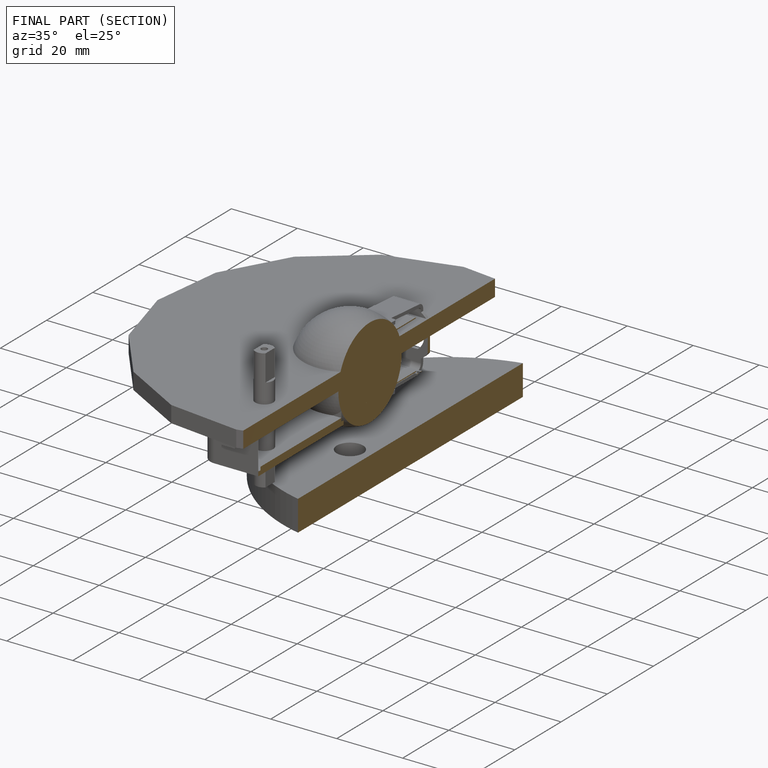
[diagram: finished part — half-section view (interior)]
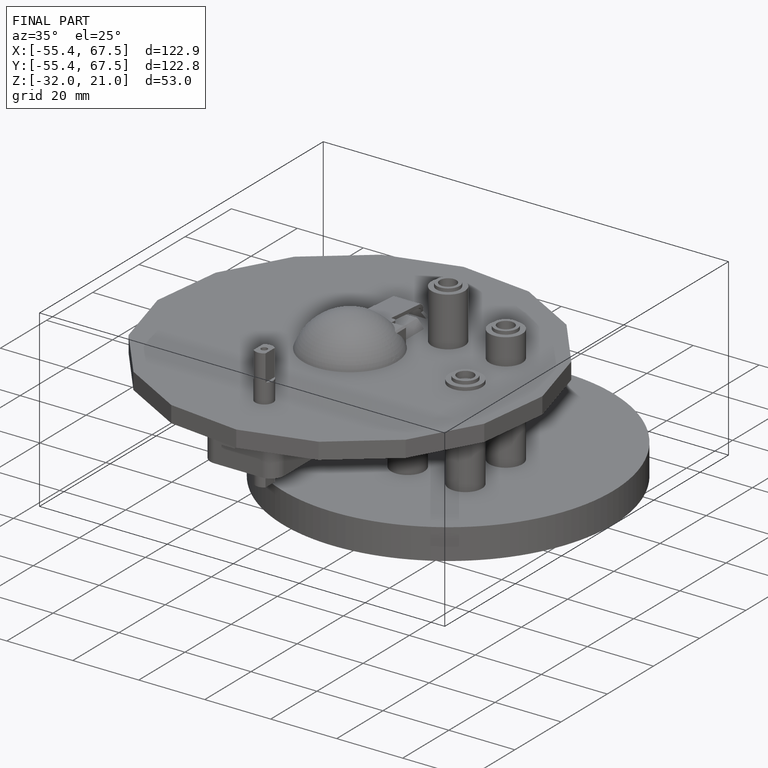
[diagram: finished part — iso view with bounding-box wireframe]
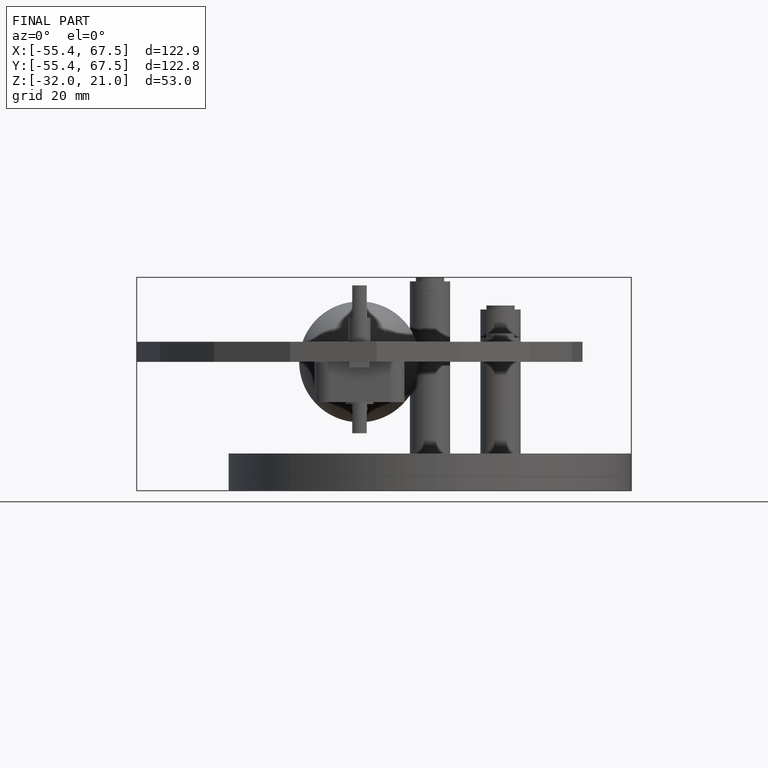
[diagram: finished part — front view with bounding-box wireframe]
